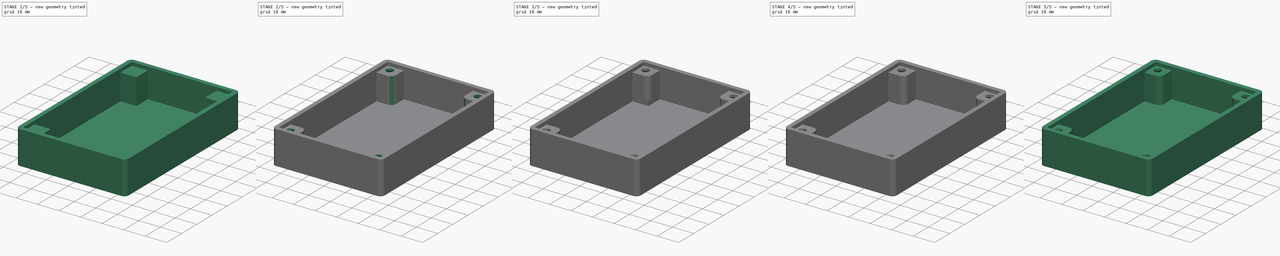
[diagram: build sequence overview — one tinted view per stage of 5, left to right]
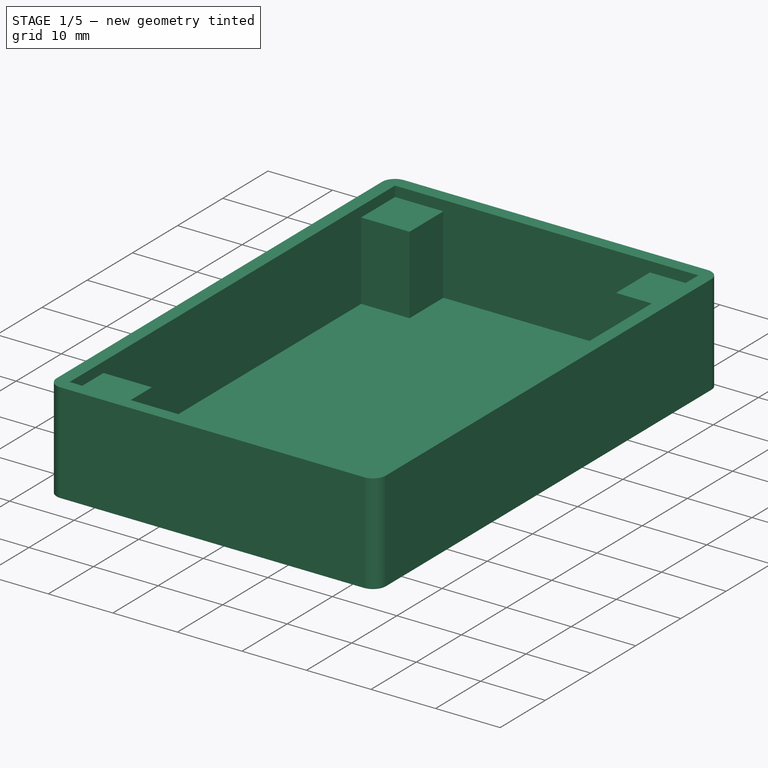
[diagram: stage 1 of 5 — iso view after this stage's code; geometry added in this stage tinted green]
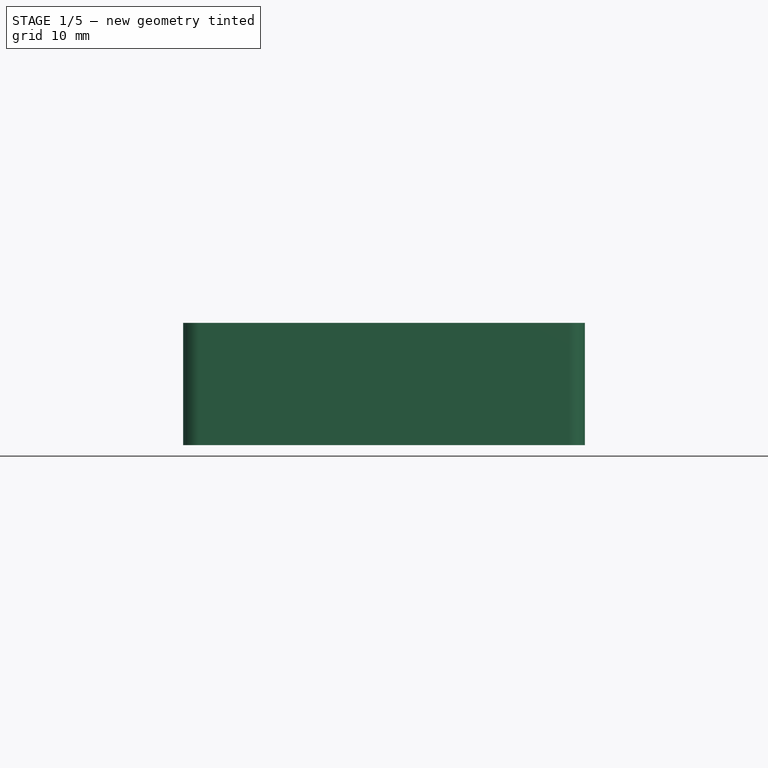
[diagram: stage 1 of 5 — front view after this stage's code; geometry added in this stage tinted green]
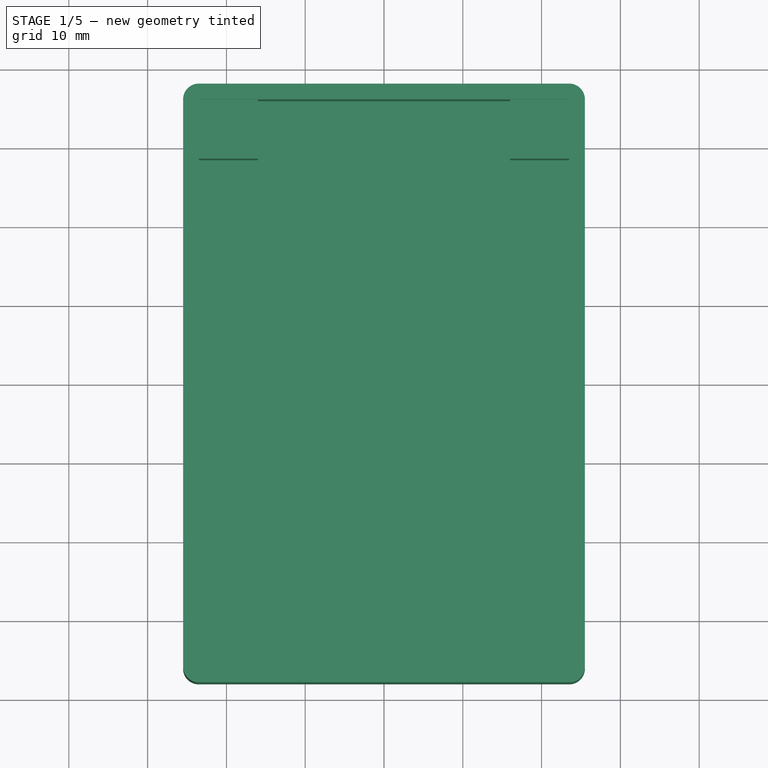
[diagram: stage 1 of 5 — top view after this stage's code; geometry added in this stage tinted green]
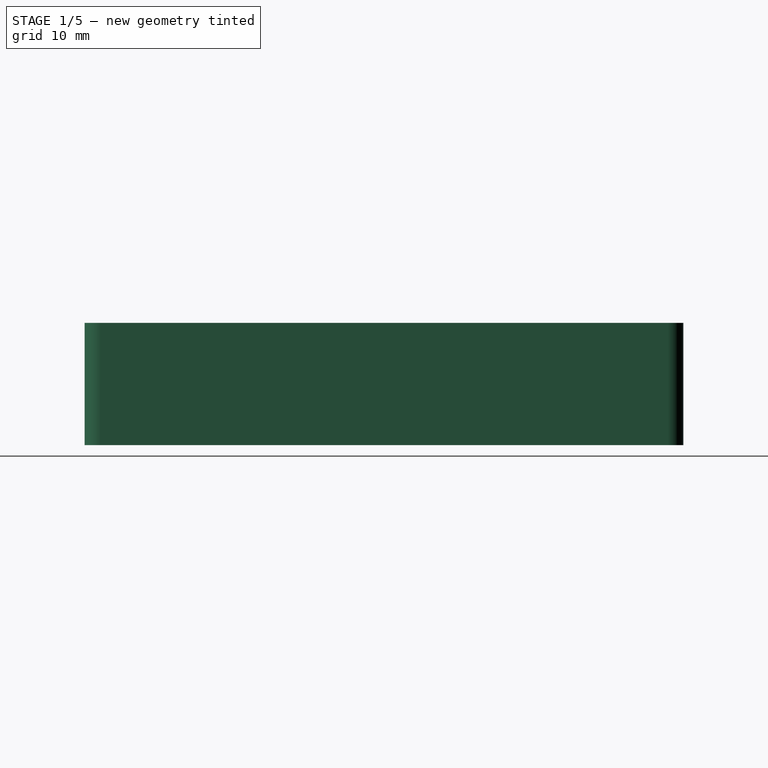
[diagram: stage 1 of 5 — right view after this stage's code; geometry added in this stage tinted green]
FCSTD DOCUMENT  (FreeCAD 1.0R39319 (Git))
Label: SFX-BO-01_Shell
License: All rights reserved
LicenseURL: https://en.wikipedia.org/wiki/All_rights_reserved
objects: Sketcher::SketchObject×14, PartDesign::Pad×8, PartDesign::Hole×4, PartDesign::Fillet×4, PartDesign::Body×4, PartDesign::Pocket×1
note: 83 computed .brp shape members not serialized (recipe doc carries the construction recipe); baked Part::Feature solids carry a one-line shape summary decoded from their .brp

FEATURE [Sketcher::SketchObject] Sketch
  ArcFitTolerance = 1e-06
  AttachmentSupport = -> [XY_Plane]
  FullyConstrained = true
  MakeInternals = false
  MapMode = 5
  sketch-geometry (31):
    g0: LineSegment [constr] StartX=-23.5 StartY=-36 StartZ=0 EndX=23.5 EndY=-36 EndZ=0
    g1: LineSegment [constr] StartX=23.5 StartY=-36 StartZ=0 EndX=23.5 EndY=36 EndZ=0
    g2: LineSegment [constr] StartX=23.5 StartY=36 StartZ=0 EndX=-23.5 EndY=36 EndZ=0
    g3: LineSegment [constr] StartX=-23.5 StartY=36 StartZ=0 EndX=-23.5 EndY=-36 EndZ=0
    g4: GeomPoint [constr] X=0 Y=0 Z=0
    g5: LineSegment [constr] StartX=-23.5 StartY=36 StartZ=0 EndX=-23.5 EndY=33 EndZ=0
    g6: LineSegment [constr] StartX=-23.5 StartY=33 StartZ=0 EndX=-20.5 EndY=33 EndZ=0
    g7: LineSegment [constr] StartX=-20.5 StartY=33 StartZ=0 EndX=-20.5 EndY=36 EndZ=0
    g8: LineSegment [constr] StartX=-20.5 StartY=36 StartZ=0 EndX=-23.5 EndY=36 EndZ=0
    g9: LineSegment [constr] StartX=23.5 StartY=36 StartZ=0 EndX=20.5 EndY=36 EndZ=0
    g10: LineSegment [constr] StartX=20.5 StartY=36 StartZ=0 EndX=20.5 EndY=33 EndZ=0
    g11: LineSegment [constr] StartX=20.5 StartY=33 StartZ=0 EndX=23.5 EndY=33 EndZ=0
    g12: LineSegment [constr] StartX=23.5 StartY=33 StartZ=0 EndX=23.5 EndY=36 EndZ=0
    g13: LineSegment [constr] StartX=23.5 StartY=-36 StartZ=0 EndX=23.5 EndY=-33 EndZ=0
    g14: LineSegment [constr] StartX=23.5 StartY=-33 StartZ=0 EndX=20.5 EndY=-33 EndZ=0
    g15: LineSegment [constr] StartX=20.5 StartY=-33 StartZ=0 EndX=20.5 EndY=-36 EndZ=0
    g16: LineSegment [constr] StartX=20.5 StartY=-36 StartZ=0 EndX=23.5 EndY=-36 EndZ=0
    g17: LineSegment [constr] StartX=-23.5 StartY=-36 StartZ=0 EndX=-20.5 EndY=-36 EndZ=0
    g18: LineSegment [constr] StartX=-20.5 StartY=-36 StartZ=0 EndX=-20.5 EndY=-33 EndZ=0
    g19: LineSegment [constr] StartX=-20.5 StartY=-33 StartZ=0 EndX=-23.5 EndY=-33 EndZ=0
    g20: LineSegment [constr] StartX=-23.5 StartY=-33 StartZ=0 EndX=-23.5 EndY=-36 EndZ=0
    g21: LineSegment StartX=-23.5 StartY=-38 StartZ=0 EndX=23.5 EndY=-38 EndZ=0
    g22: LineSegment StartX=25.5 StartY=-36 StartZ=0 EndX=25.5 EndY=36 EndZ=0
    g23: LineSegment StartX=23.5 StartY=38 StartZ=0 EndX=-23.5 EndY=38 EndZ=0
    g24: LineSegment StartX=-25.5 StartY=36 StartZ=0 EndX=-25.5 EndY=-36 EndZ=0
    g25: ArcOfCircle CenterX=-23.5 CenterY=-36 CenterZ=0 NormalX=0 NormalY=0 NormalZ=1 AngleXU=0 Radius=2 StartAngle=3.14159 EndAngle=4.71239
    g26: ArcOfCircle CenterX=23.5 CenterY=-36 CenterZ=0 NormalX=0 NormalY=0 NormalZ=1 AngleXU=0 Radius=2 StartAngle=4.71239 EndAngle=6.28319
    g27: ArcOfCircle CenterX=23.5 CenterY=36 CenterZ=0 NormalX=0 NormalY=0 NormalZ=1 AngleXU=0 Radius=2 StartAngle=0 EndAngle=1.5708
    g28: ArcOfCircle CenterX=-23.5 CenterY=36 CenterZ=0 NormalX=0 NormalY=0 NormalZ=1 AngleXU=0 Radius=2 StartAngle=1.5708 EndAngle=3.14159
    g29: GeomPoint [constr] X=25.5 Y=38 Z=0
    g30: GeomPoint [constr] X=0 Y=0 Z=0
  constraints (78):
    c: Coincident(g0,g1)
    c: Coincident(g1,g2)
    c: Coincident(g2,g3)
    c: Coincident(g3,g0)
    c: Horizontal(g0)
    c: Horizontal(g2)
    c: Vertical(g1)
    c: Vertical(g3)
    c: Symmetric(g2,g0,g4)
    c: Distance(g1,g3) = 47
    c: Distance(g0,g2) = 72
    c: Coincident(g4,g-1)
    c: Coincident(g5,g6)
    c: Coincident(g6,g7)
    c: Coincident(g7,g8)
    c: Coincident(g8,g5)
    c: Vertical(g5)
    c: Vertical(g7)
    c: Horizontal(g6)
    c: Horizontal(g8)
    c: Distance(g5,g7) = 3
    c: Distance(g6,g8) = 3
    c: Coincident(g5,g2)
    c: Coincident(g9,g10)
    c: Coincident(g10,g11)
    c: Coincident(g11,g12)
    c: Coincident(g12,g9)
    c: Horizontal(g9)
    c: Horizontal(g11)
    c: Vertical(g10)
    c: Vertical(g12)
    c: Distance(g10,g12) = 3
    c: Distance(g9,g11) = 3
    c: Coincident(g9,g1)
    c: Coincident(g13,g14)
    c: Coincident(g14,g15)
    c: Coincident(g15,g16)
    c: Coincident(g16,g13)
    c: Vertical(g13)
    c: Vertical(g15)
    c: Horizontal(g14)
    c: Horizontal(g16)
    c: Distance(g13,g15) = 3
    c: Distance(g14,g16) = 3
    c: Coincident(g13,g0)
    c: Coincident(g17,g18)
    c: Coincident(g18,g19)
    c: Coincident(g19,g20)
    c: Coincident(g20,g17)
    c: Horizontal(g17)
    c: Horizontal(g19)
    c: Vertical(g18)
    c: Vertical(g20)
    c: Distance(g18,g20) = 3
    c: Distance(g17,g19) = 3
    c: Coincident(g17,g0)
    c: Tangent(g21,g25) = -1.5708
    c: Tangent(g21,g26) = -1.5708
    c: Tangent(g22,g26) = -1.5708
    c: Tangent(g22,g27) = -1.5708
    c: Tangent(g23,g27) = -1.5708
    c: Tangent(g23,g28) = -1.5708
    c: Tangent(g24,g28) = -1.5708
    c: Tangent(g24,g25) = -1.5708
    c: Horizontal(g21)
    c: Horizontal(g23)
    c: Vertical(g22)
    c: Vertical(g24)
    c: Equal(g25,g26)
    c: Equal(g26,g27)
    c: Equal(g27,g28)
    c: Symmetric(g23,g21,g30)
    c: PointOnObject(g29,g22)
    c: PointOnObject(g29,g23)
    c: Distance(g22,g24) = 51
    c: Distance(g21,g23) = 76
    c: Radius(g26) = 2
    c: Coincident(g30,g4)
FEATURE [PartDesign::Pad] Pad
  Direction = (0,0,1)
  Length = 1.8
  Length2 = 10
  Profile = -> Sketch
  ReferenceAxis = -> Sketch [N_Axis]
  Suppressed = false
  Type = 0
FEATURE [Sketcher::SketchObject] Sketch001
  ArcFitTolerance = 1e-06
  AttachmentSupport = -> [Pad]
  FullyConstrained = true
  MakeInternals = false
  MapMode = 5
  Placement = pos=(0,0,1.8) rot=(0,0,1;0rad)
  sketch-geometry (15):
    g0: LineSegment StartX=-23.5 StartY=-38 StartZ=0 EndX=23.5 EndY=-38 EndZ=0
    g1: LineSegment StartX=25.5 StartY=-36 StartZ=0 EndX=25.5 EndY=36 EndZ=0
    g2: LineSegment StartX=23.5 StartY=38 StartZ=0 EndX=-23.5 EndY=38 EndZ=0
    g3: LineSegment StartX=-25.5 StartY=36 StartZ=0 EndX=-25.5 EndY=-36 EndZ=0
    g4: ArcOfCircle CenterX=-23.5 CenterY=-36 CenterZ=0 NormalX=0 NormalY=0 NormalZ=1 AngleXU=0 Radius=2 StartAngle=3.14159 EndAngle=4.71239
    g5: ArcOfCircle CenterX=23.5 CenterY=-36 CenterZ=0 NormalX=0 NormalY=0 NormalZ=1 AngleXU=0 Radius=2 StartAngle=4.71239 EndAngle=6.28319
    g6: ArcOfCircle CenterX=23.5 CenterY=36 CenterZ=0 NormalX=0 NormalY=0 NormalZ=1 AngleXU=0 Radius=2 StartAngle=-1.8e-15 EndAngle=1.5708
    g7: ArcOfCircle CenterX=-23.5 CenterY=36 CenterZ=0 NormalX=0 NormalY=0 NormalZ=1 AngleXU=0 Radius=2 StartAngle=1.5708 EndAngle=3.14159
    g8: GeomPoint [constr] X=25.5 Y=38 Z=0
    g9: GeomPoint [constr] X=0 Y=0 Z=0
    g10: LineSegment StartX=-23.5 StartY=-36 StartZ=0 EndX=23.5 EndY=-36 EndZ=0
    g11: LineSegment StartX=23.5 StartY=-36 StartZ=0 EndX=23.5 EndY=36 EndZ=0
    g12: LineSegment StartX=23.5 StartY=36 StartZ=0 EndX=-23.5 EndY=36 EndZ=0
    g13: LineSegment StartX=-23.5 StartY=36 StartZ=0 EndX=-23.5 EndY=-36 EndZ=0
    g14: GeomPoint [constr] X=0 Y=0 Z=0
  constraints (33):
    c: Tangent(g0,g4) = -1.5708
    c: Tangent(g0,g5) = -1.5708
    c: Tangent(g1,g5) = -1.5708
    c: Tangent(g1,g6) = -1.5708
    c: Tangent(g2,g6) = -1.5708
    c: Tangent(g2,g7) = -1.5708
    c: Tangent(g3,g7) = -1.5708
    c: Tangent(g3,g4) = -1.5708
    c: Horizontal(g0)
    c: Horizontal(g2)
    c: Vertical(g1)
    c: Vertical(g3)
    c: Equal(g4,g5)
    c: Equal(g5,g6)
    c: Equal(g6,g7)
    c: Symmetric(g2,g0,g9)
    c: PointOnObject(g8,g1)
    c: PointOnObject(g8,g2)
    c: Distance(g1,g3) = 51
    c: Distance(g0,g2) = 76
    c: Radius(g5) = 2
    c: Coincident(g9,g-1)
    c: Coincident(g10,g11)
    c: Coincident(g11,g12)
    c: Coincident(g12,g13)
    c: Coincident(g13,g10)
    c: Horizontal(g10)
    c: Horizontal(g12)
    c: Vertical(g11)
    c: Vertical(g13)
    c: Symmetric(g12,g10,g14)
    c: Coincident(g14,g9)
    c: Coincident(g11,g6)
FEATURE [PartDesign::Pad] Pad001
  BaseFeature = -> Pad
  Direction = (0,0,1)
  Length = 13.7
  Length2 = 10
  Profile = -> Sketch001
  ReferenceAxis = -> Sketch001 [N_Axis]
  Suppressed = false
  Type = 0
FEATURE [Sketcher::SketchObject] Sketch002
  ArcFitTolerance = 1e-06
  AttachmentSupport = -> [Pad001]
  ExternalGeometry = -> [Pad001]
  FullyConstrained = true
  MakeInternals = false
  MapMode = 5
  Placement = pos=(0,0,1.8) rot=(0,0,1;0rad)
  sketch-geometry (22):
    g0: LineSegment [constr] StartX=-20.5 StartY=-33 StartZ=0 EndX=20.5 EndY=-33 EndZ=0
    g1: LineSegment [constr] StartX=20.5 StartY=-33 StartZ=0 EndX=20.5 EndY=33 EndZ=0
    g2: LineSegment [constr] StartX=20.5 StartY=33 StartZ=0 EndX=-20.5 EndY=33 EndZ=0
    g3: LineSegment [constr] StartX=-20.5 StartY=33 StartZ=0 EndX=-20.5 EndY=-33 EndZ=0
    g4: GeomPoint [constr] X=0 Y=0 Z=0
    g5: GeomPoint [constr] X=0 Y=0 Z=0
    g6: LineSegment StartX=-23.5 StartY=36 StartZ=0 EndX=-23.5 EndY=28.5 EndZ=0
    g7: LineSegment StartX=-23.5 StartY=28.5 StartZ=0 EndX=-16 EndY=28.5 EndZ=0
    g8: LineSegment StartX=-16 StartY=28.5 StartZ=0 EndX=-16 EndY=36 EndZ=0
    g9: LineSegment StartX=-16 StartY=36 StartZ=0 EndX=-23.5 EndY=36 EndZ=0
    g10: LineSegment StartX=23.5 StartY=36 StartZ=0 EndX=16 EndY=36 EndZ=0
    g11: LineSegment StartX=16 StartY=36 StartZ=0 EndX=16 EndY=28.5 EndZ=0
    g12: LineSegment StartX=16 StartY=28.5 StartZ=0 EndX=23.5 EndY=28.5 EndZ=0
    g13: LineSegment StartX=23.5 StartY=28.5 StartZ=0 EndX=23.5 EndY=36 EndZ=0
    g14: LineSegment StartX=23.5 StartY=-36 StartZ=0 EndX=23.5 EndY=-28.5 EndZ=0
    g15: LineSegment StartX=23.5 StartY=-28.5 StartZ=0 EndX=16 EndY=-28.5 EndZ=0
    g16: LineSegment StartX=16 StartY=-28.5 StartZ=0 EndX=16 EndY=-36 EndZ=0
    g17: LineSegment StartX=16 StartY=-36 StartZ=0 EndX=23.5 EndY=-36 EndZ=0
    g18: LineSegment StartX=-23.5 StartY=-36 StartZ=0 EndX=-16 EndY=-36 EndZ=0
    g19: LineSegment StartX=-16 StartY=-36 StartZ=0 EndX=-16 EndY=-28.5 EndZ=0
    g20: LineSegment StartX=-16 StartY=-28.5 StartZ=0 EndX=-23.5 EndY=-28.5 EndZ=0
    g21: LineSegment StartX=-23.5 StartY=-28.5 StartZ=0 EndX=-23.5 EndY=-36 EndZ=0
  constraints (57):
    c: Coincident(g0,g1)
    c: Coincident(g1,g2)
    c: Coincident(g2,g3)
    c: Coincident(g3,g0)
    c: Horizontal(g0)
    c: Horizontal(g2)
    c: Vertical(g1)
    c: Vertical(g3)
    c: Symmetric(g2,g0,g4)
    c: Distance(g1,g3) = 41
    c: Distance(g0,g2) = 66
    c: Coincident(g4,g-1)
    c: Coincident(g5,g4)
    c: Coincident(g6,g7)
    c: Coincident(g7,g8)
    c: Coincident(g8,g9)
    c: Coincident(g9,g6)
    c: Vertical(g6)
    c: Vertical(g8)
    c: Horizontal(g7)
    c: Horizontal(g9)
    c: Distance(g6,g8) = 7.5
    c: Distance(g7,g9) = 7.5
    c: Coincident(g6,g-3)
    c: Coincident(g10,g11)
    c: Coincident(g11,g12)
    c: Coincident(g12,g13)
    c: Coincident(g13,g10)
    c: Horizontal(g10)
    c: Horizontal(g12)
    c: Vertical(g11)
    c: Vertical(g13)
    c: Distance(g11,g13) = 7.5
    c: Distance(g10,g12) = 7.5
    c: Coincident(g10,g-3)
    c: Coincident(g14,g15)
    c: Coincident(g15,g16)
    c: Coincident(g16,g17)
    c: Coincident(g17,g14)
    c: Vertical(g14)
    c: Vertical(g16)
    c: Horizontal(g15)
    c: Horizontal(g17)
    c: Distance(g14,g16) = 7.5
    c: Distance(g15,g17) = 7.5
    c: Coincident(g14,g-4)
    c: Coincident(g18,g19)
    c: Coincident(g19,g20)
    c: Coincident(g20,g21)
    c: Coincident(g21,g18)
    c: Horizontal(g18)
    c: Horizontal(g20)
    c: Vertical(g19)
    c: Vertical(g21)
    c: Distance(g19,g21) = 7.5
    c: Distance(g18,g20) = 7.5
    c: Coincident(g18,g-4)
FEATURE [PartDesign::Pad] Pad002
  BaseFeature = -> Pad001
  Direction = (0,0,1)
  Length = 12.1
  Length2 = 10
  Profile = -> Sketch002
  ReferenceAxis = -> Sketch002 [N_Axis]
  Suppressed = false
  Type = 0
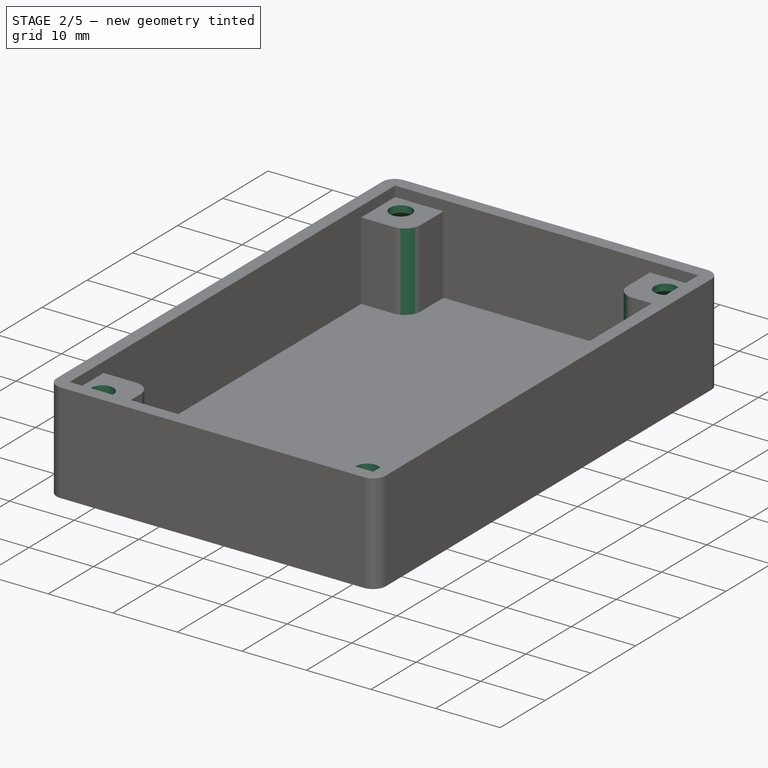
[diagram: stage 2 of 5 — iso view after this stage's code; geometry added in this stage tinted green]
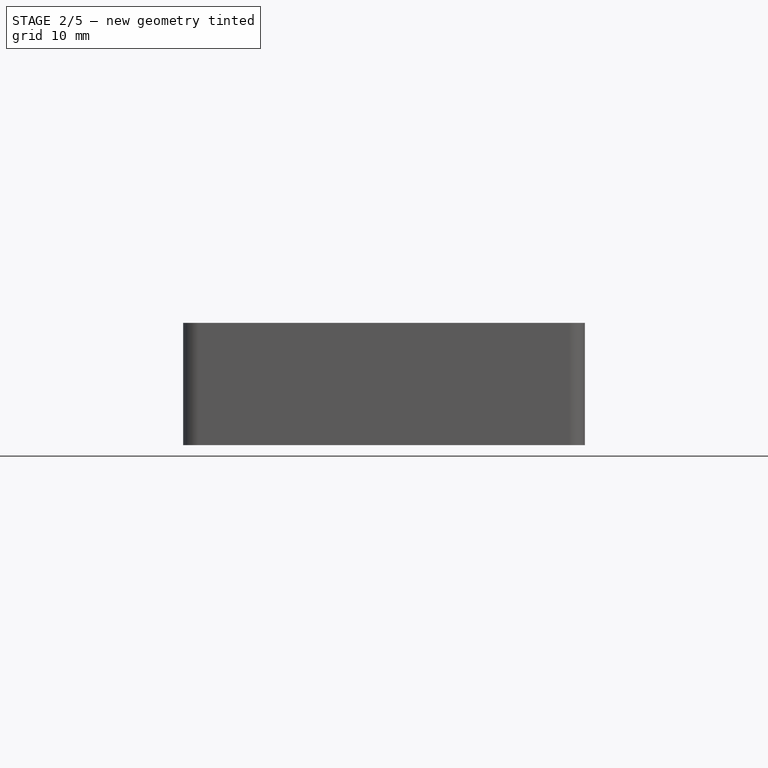
[diagram: stage 2 of 5 — front view after this stage's code; geometry added in this stage tinted green]
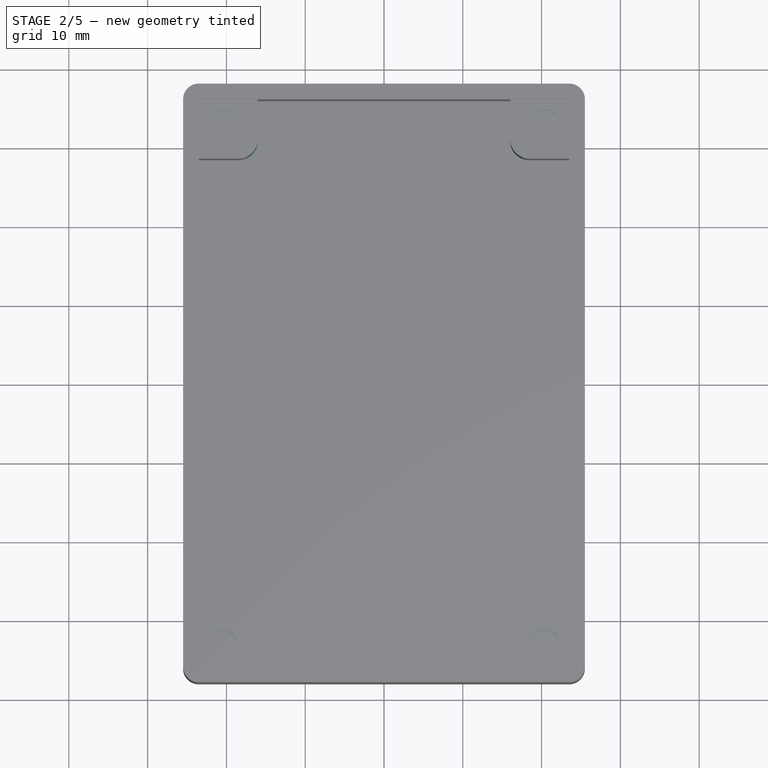
[diagram: stage 2 of 5 — top view after this stage's code; geometry added in this stage tinted green]
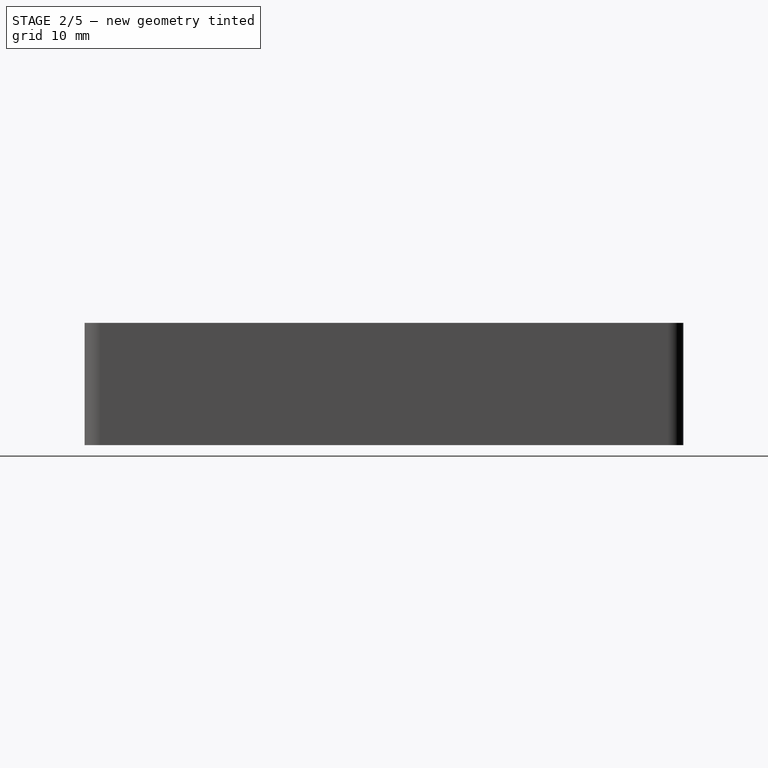
[diagram: stage 2 of 5 — right view after this stage's code; geometry added in this stage tinted green]
FEATURE [Sketcher::SketchObject] Sketch003
  ArcFitTolerance = 1e-06
  FullyConstrained = true
  MakeInternals = false
  MapMode = 5
  Placement = pos=(0,0,0) rot=(1,0,0;3.14159rad)
  sketch-geometry (9):
    g0: LineSegment [constr] StartX=-20.5 StartY=-33 StartZ=0 EndX=20.5 EndY=-33 EndZ=0
    g1: LineSegment [constr] StartX=20.5 StartY=-33 StartZ=0 EndX=20.5 EndY=33 EndZ=0
    g2: LineSegment [constr] StartX=20.5 StartY=33 StartZ=0 EndX=-20.5 EndY=33 EndZ=0
    g3: LineSegment [constr] StartX=-20.5 StartY=33 StartZ=0 EndX=-20.5 EndY=-33 EndZ=0
    g4: GeomPoint [constr] X=0 Y=0 Z=0
    g5: Circle CenterX=-20.5 CenterY=33 CenterZ=0 NormalX=0 NormalY=0 NormalZ=1 AngleXU=0 Radius=1.25
    g6: Circle CenterX=20.5 CenterY=33 CenterZ=0 NormalX=0 NormalY=0 NormalZ=1 AngleXU=0 Radius=1.25
    g7: Circle CenterX=20.5 CenterY=-33 CenterZ=0 NormalX=0 NormalY=0 NormalZ=1 AngleXU=0 Radius=1.25
    g8: Circle CenterX=-20.5 CenterY=-33 CenterZ=0 NormalX=0 NormalY=0 NormalZ=1 AngleXU=0 Radius=1.25
  constraints (20):
    c: Coincident(g0,g1)
    c: Coincident(g1,g2)
    c: Coincident(g2,g3)
    c: Coincident(g3,g0)
    c: Horizontal(g0)
    c: Horizontal(g2)
    c: Vertical(g1)
    c: Vertical(g3)
    c: Symmetric(g2,g0,g4)
    c: Distance(g1,g3) = 41
    c: Distance(g0,g2) = 66
    c: Coincident(g4,g-1)
    c: Diameter(g5) = 2.5
    c: Coincident(g5,g2)
    c: Diameter(g6) = 2.5
    c: Coincident(g6,g1)
    c: Diameter(g7) = 2.5
    c: Coincident(g7,g0)
    c: Diameter(g8) = 2.5
    c: Coincident(g8,g0)
FEATURE [PartDesign::Hole] Hole
  BaseFeature = -> Pad002
  CustomThreadClearance = 0
  Depth = 25
  DepthType = 0
  Diameter = 3.4
  DrillForDepth = false
  DrillPoint = 1
  DrillPointAngle = 118
  HoleCutCountersinkAngle = 90
  HoleCutCustomValues = false
  HoleCutDepth = 11.5
  HoleCutDiameter = 6.1
  HoleCutType = 3
  ModelThread = false
  Profile = -> Sketch003
  Suppressed = false
  Tapered = false
  TaperedAngle = 90
  ThreadClass = 0
  ThreadDepth = 25
  ThreadDepthType = 0
  ThreadDirection = 0
  ThreadFit = 0
  ThreadSize = 9
  ThreadType = 1
  Threaded = false
  UseCustomThreadClearance = false
FEATURE [PartDesign::Fillet] Fillet
  Base = -> Hole [Edge111,Edge114,Edge108,Edge99]
  BaseFeature = -> Hole
  Radius = 2.5
  SupportTransform = false
  Suppressed = false
  UseAllEdges = false
FEATURE [PartDesign::Body] Body002  label="South-Body"
  AllowCompound = false
  Group = -> [Sketch006,Pad004,Sketch007,Hole002,Fillet002]
  Origin = -> Origin002
  Placement = pos=(0,0,0) rot=(0,0,1;3.14159rad)
  Tip = -> Fillet002
FEATURE [Sketcher::SketchObject] Sketch008
  ArcFitTolerance = 1e-06
  AttachmentSupport = -> [XY_Plane003]
  FullyConstrained = true
  MakeInternals = false
  MapMode = 5
  sketch-geometry (31):
    g0: LineSegment [constr] StartX=-23.5 StartY=-36 StartZ=0 EndX=23.5 EndY=-36 EndZ=0
    g1: LineSegment [constr] StartX=23.5 StartY=-36 StartZ=0 EndX=23.5 EndY=36 EndZ=0
    g2: LineSegment [constr] StartX=23.5 StartY=36 StartZ=0 EndX=-23.5 EndY=36 EndZ=0
    g3: LineSegment [constr] StartX=-23.5 StartY=36 StartZ=0 EndX=-23.5 EndY=-36 EndZ=0
    g4: GeomPoint [constr] X=0 Y=0 Z=0
    g5: LineSegment [constr] StartX=-23.5 StartY=36 StartZ=0 EndX=-23.5 EndY=33 EndZ=0
    g6: LineSegment [constr] StartX=-23.5 StartY=33 StartZ=0 EndX=-20.5 EndY=33 EndZ=0
    g7: LineSegment [constr] StartX=-20.5 StartY=33 StartZ=0 EndX=-20.5 EndY=36 EndZ=0
    g8: LineSegment [constr] StartX=-20.5 StartY=36 StartZ=0 EndX=-23.5 EndY=36 EndZ=0
    g9: LineSegment [constr] StartX=23.5 StartY=36 StartZ=0 EndX=20.5 EndY=36 EndZ=0
    g10: LineSegment [constr] StartX=20.5 StartY=36 StartZ=0 EndX=20.5 EndY=33 EndZ=0
    g11: LineSegment [constr] StartX=20.5 StartY=33 StartZ=0 EndX=23.5 EndY=33 EndZ=0
    g12: LineSegment [constr] StartX=23.5 StartY=33 StartZ=0 EndX=23.5 EndY=36 EndZ=0
    g13: LineSegment [constr] StartX=23.5 StartY=-36 StartZ=0 EndX=23.5 EndY=-33 EndZ=0
    g14: LineSegment [constr] StartX=23.5 StartY=-33 StartZ=0 EndX=20.5 EndY=-33 EndZ=0
    g15: LineSegment [constr] StartX=20.5 StartY=-33 StartZ=0 EndX=20.5 EndY=-36 EndZ=0
    g16: LineSegment [constr] StartX=20.5 StartY=-36 StartZ=0 EndX=23.5 EndY=-36 EndZ=0
    g17: LineSegment [constr] StartX=-23.5 StartY=-36 StartZ=0 EndX=-20.5 EndY=-36 EndZ=0
    g18: LineSegment [constr] StartX=-20.5 StartY=-36 StartZ=0 EndX=-20.5 EndY=-33 EndZ=0
    g19: LineSegment [constr] StartX=-20.5 StartY=-33 StartZ=0 EndX=-23.5 EndY=-33 EndZ=0
    g20: LineSegment [constr] StartX=-23.5 StartY=-33 StartZ=0 EndX=-23.5 EndY=-36 EndZ=0
    g21: LineSegment StartX=-23.5 StartY=-38 StartZ=0 EndX=23.5 EndY=-38 EndZ=0
    g22: LineSegment StartX=25.5 StartY=-36 StartZ=0 EndX=25.5 EndY=36 EndZ=0
    g23: LineSegment StartX=23.5 StartY=38 StartZ=0 EndX=-23.5 EndY=38 EndZ=0
    g24: LineSegment StartX=-25.5 StartY=36 StartZ=0 EndX=-25.5 EndY=-36 EndZ=0
    g25: ArcOfCircle CenterX=-23.5 CenterY=-36 CenterZ=0 NormalX=0 NormalY=0 NormalZ=1 AngleXU=0 Radius=2 StartAngle=3.14159 EndAngle=4.71239
    g26: ArcOfCircle CenterX=23.5 CenterY=-36 CenterZ=0 NormalX=0 NormalY=0 NormalZ=1 AngleXU=0 Radius=2 StartAngle=4.71239 EndAngle=6.28319
    g27: ArcOfCircle CenterX=23.5 CenterY=36 CenterZ=0 NormalX=0 NormalY=0 NormalZ=1 AngleXU=0 Radius=2 StartAngle=0 EndAngle=1.5708
    g28: ArcOfCircle CenterX=-23.5 CenterY=36 CenterZ=0 NormalX=0 NormalY=0 NormalZ=1 AngleXU=0 Radius=2 StartAngle=1.5708 EndAngle=3.14159
    g29: GeomPoint [constr] X=25.5 Y=38 Z=0
    g30: GeomPoint [constr] X=0 Y=0 Z=0
  constraints (78):
    c: Coincident(g0,g1)
    c: Coincident(g1,g2)
    c: Coincident(g2,g3)
    c: Coincident(g3,g0)
    c: Horizontal(g0)
    c: Horizontal(g2)
    c: Vertical(g1)
    c: Vertical(g3)
    c: Symmetric(g2,g0,g4)
    c: Distance(g1,g3) = 47
    c: Distance(g0,g2) = 72
    c: Coincident(g4,g-1)
    c: Coincident(g5,g6)
    c: Coincident(g6,g7)
    c: Coincident(g7,g8)
    c: Coincident(g8,g5)
    c: Vertical(g5)
    c: Vertical(g7)
    c: Horizontal(g6)
    c: Horizontal(g8)
    c: Distance(g5,g7) = 3
    c: Distance(g6,g8) = 3
    c: Coincident(g5,g2)
    c: Coincident(g9,g10)
    c: Coincident(g10,g11)
    c: Coincident(g11,g12)
    c: Coincident(g12,g9)
    c: Horizontal(g9)
    c: Horizontal(g11)
    c: Vertical(g10)
    c: Vertical(g12)
    c: Distance(g10,g12) = 3
    c: Distance(g9,g11) = 3
    c: Coincident(g9,g1)
    c: Coincident(g13,g14)
    c: Coincident(g14,g15)
    c: Coincident(g15,g16)
    c: Coincident(g16,g13)
    c: Vertical(g13)
    c: Vertical(g15)
    c: Horizontal(g14)
    c: Horizontal(g16)
    c: Distance(g13,g15) = 3
    c: Distance(g14,g16) = 3
    c: Coincident(g13,g0)
    c: Coincident(g17,g18)
    c: Coincident(g18,g19)
    c: Coincident(g19,g20)
    c: Coincident(g20,g17)
    c: Horizontal(g17)
    c: Horizontal(g19)
    c: Vertical(g18)
    c: Vertical(g20)
    c: Distance(g18,g20) = 3
    c: Distance(g17,g19) = 3
    c: Coincident(g17,g0)
    c: Tangent(g21,g25) = -1.5708
    c: Tangent(g21,g26) = -1.5708
    c: Tangent(g22,g26) = -1.5708
    c: Tangent(g22,g27) = -1.5708
    c: Tangent(g23,g27) = -1.5708
    c: Tangent(g23,g28) = -1.5708
    c: Tangent(g24,g28) = -1.5708
    c: Tangent(g24,g25) = -1.5708
    c: Horizontal(g21)
    c: Horizontal(g23)
    c: Vertical(g22)
    c: Vertical(g24)
    c: Equal(g25,g26)
    c: Equal(g26,g27)
    c: Equal(g27,g28)
    c: Symmetric(g23,g21,g30)
    c: PointOnObject(g29,g22)
    c: PointOnObject(g29,g23)
    c: Distance(g22,g24) = 51
    c: Distance(g21,g23) = 76
    c: Radius(g26) = 2
    c: Coincident(g30,g4)
FEATURE [PartDesign::Pad] Pad005
  Direction = (0,0,1)
  Length = 1.8
  Length2 = 10
  Profile = -> Sketch008
  ReferenceAxis = -> Sketch008 [N_Axis]
  Suppressed = false
  Type = 0
FEATURE [Sketcher::SketchObject] Sketch012  label="Sketch012_Slot_if_needed"
  ArcFitTolerance = 1e-06
  AttachmentSupport = -> [Fillet003]
  FullyConstrained = true
  MakeInternals = false
  MapMode = 5
  Placement = pos=(0,0,1.8) rot=(0,0,1;0rad)
  sketch-geometry (45):
    g0: LineSegment [constr] StartX=-23.5 StartY=-36 StartZ=0 EndX=23.5 EndY=-36 EndZ=0
    g1: LineSegment [constr] StartX=23.5 StartY=-36 StartZ=0 EndX=23.5 EndY=36 EndZ=0
    g2: LineSegment [constr] StartX=23.5 StartY=36 StartZ=0 EndX=-23.5 EndY=36 EndZ=0
    g3: LineSegment [constr] StartX=-23.5 StartY=36 StartZ=0 EndX=-23.5 EndY=-36 EndZ=0
    g4: GeomPoint [constr] X=2.147e-13 Y=-3.952e-13 Z=0
    g5: GeomPoint [constr] X=-23.5 Y=-7.3 Z=0
    g6: GeomPoint [constr] X=-23.5 Y=-17.5 Z=0
    g7: GeomPoint [constr] X=-23.5 Y=6.7 Z=0
    g8: GeomPoint [constr] X=-23.5 Y=16.8 Z=0
    g9: GeomPoint [constr] X=23.5 Y=13.1 Z=0
    g10: GeomPoint [constr] X=23.5 Y=2.94 Z=0
    g11: GeomPoint [constr] X=23.5 Y=-10.6 Z=0
    g12: GeomPoint [constr] X=23.5 Y=-20.7 Z=0
    g13: GeomPoint [constr] X=-23.5 Y=-20 Z=0
    g14: GeomPoint [constr] X=-23.5 Y=-4.8 Z=0
    g15: GeomPoint [constr] X=-23.5 Y=4.2 Z=0
    g16: GeomPoint [constr] X=-23.5 Y=19.3 Z=0
    g17: GeomPoint [constr] X=23.5 Y=15.6 Z=0
    g18: GeomPoint [constr] X=23.5 Y=-8.1 Z=0
    g19: GeomPoint [constr] X=23.5 Y=-23.2 Z=0
    g20: GeomPoint [constr] X=23.5 Y=0.44 Z=0
    g21: LineSegment StartX=-23.5 StartY=-20 StartZ=0 EndX=-23.5 EndY=-20 EndZ=0
    g22: LineSegment StartX=-23.5 StartY=-20 StartZ=0 EndX=-23.5 EndY=-4.8 EndZ=0
    g23: LineSegment StartX=-23.5 StartY=-4.8 StartZ=0 EndX=-23.5 EndY=-4.8 EndZ=0
    g24: LineSegment StartX=-23.5 StartY=-4.8 StartZ=0 EndX=-23.5 EndY=-20 EndZ=0
    g25: LineSegment StartX=-23.5 StartY=-20 StartZ=0 EndX=-23.5 EndY=-20 EndZ=0
    g26: LineSegment StartX=-23.5 StartY=-20 StartZ=0 EndX=-23.5 EndY=-4.8 EndZ=0
    g27: LineSegment StartX=-23.5 StartY=-4.8 StartZ=0 EndX=-23.5 EndY=-4.8 EndZ=0
    g28: LineSegment StartX=-23.5 StartY=-4.8 StartZ=0 EndX=-23.5 EndY=-20 EndZ=0
    g29: LineSegment StartX=-23.5 StartY=-20 StartZ=0 EndX=-13.5 EndY=-20 EndZ=0
    g30: LineSegment StartX=-13.5 StartY=-20 StartZ=0 EndX=-13.5 EndY=-4.8 EndZ=0
    g31: LineSegment StartX=-13.5 StartY=-4.8 StartZ=0 EndX=-23.5 EndY=-4.8 EndZ=0
    g32: LineSegment StartX=-23.5 StartY=-4.8 StartZ=0 EndX=-23.5 EndY=-20 EndZ=0
    g33: LineSegment StartX=-23.5 StartY=4.2 StartZ=0 EndX=-13.5 EndY=4.2 EndZ=0
    g34: LineSegment StartX=-13.5 StartY=4.2 StartZ=0 EndX=-13.5 EndY=19.4 EndZ=0
    g35: LineSegment StartX=-13.5 StartY=19.4 StartZ=0 EndX=-23.5 EndY=19.4 EndZ=0
    g36: LineSegment StartX=-23.5 StartY=19.4 StartZ=0 EndX=-23.5 EndY=4.2 EndZ=0
    g37: LineSegment StartX=23.5 StartY=0.44 StartZ=0 EndX=23.5 EndY=15.64 EndZ=0
    g38: LineSegment StartX=23.5 StartY=15.64 StartZ=0 EndX=13.5 EndY=15.64 EndZ=0
    g39: LineSegment StartX=13.5 StartY=15.64 StartZ=0 EndX=13.5 EndY=0.44 EndZ=0
    g40: LineSegment StartX=13.5 StartY=0.44 StartZ=0 EndX=23.5 EndY=0.44 EndZ=0
    g41: LineSegment StartX=23.5 StartY=-23.2 StartZ=0 EndX=23.5 EndY=-8 EndZ=0
    g42: LineSegment StartX=23.5 StartY=-8 StartZ=0 EndX=13.5 EndY=-8 EndZ=0
    g43: LineSegment StartX=13.5 StartY=-8 StartZ=0 EndX=13.5 EndY=-23.2 EndZ=0
    g44: LineSegment StartX=13.5 StartY=-23.2 StartZ=0 EndX=23.5 EndY=-23.2 EndZ=0
  constraints (108):
    c: Coincident(g0,g1)
    c: Coincident(g1,g2)
    c: Coincident(g2,g3)
    c: Coincident(g3,g0)
    c: Horizontal(g0)
    c: Horizontal(g2)
    c: Vertical(g1)
    c: Vertical(g3)
    c: Symmetric(g2,g0,g4)
    c: Distance(g1,g3) = 47
    c: Distance(g0,g2) = 72
    c: Coincident(g4,g-1)
    c: PointOnObject(g5,g3)
    c: PointOnObject(g6,g3)
    c: DistanceY(g0,g5) = 28.7
    c: DistanceY(g0,g6) = 18.5
    c: PointOnObject(g7,g3)
    c: PointOnObject(g8,g3)
    c: PointOnObject(g9,g1)
    c: PointOnObject(g10,g1)
    c: PointOnObject(g11,g1)
    c: PointOnObject(g12,g1)
    c: DistanceY(g0,g7) = 42.7
    c: DistanceY(g0,g8) = 52.8
    c: DistanceY(g0,g12) = 15.3
    c: DistanceY(g0,g11) = 25.4
    c: DistanceY(g0,g10) = 38.94
    c: DistanceY(g0,g9) = 49.1
    c: PointOnObject(g13,g3)
    c: PointOnObject(g14,g3)
    c: PointOnObject(g15,g3)
    c: PointOnObject(g16,g3)
    c: PointOnObject(g17,g1)
    c: PointOnObject(g18,g1)
    c: PointOnObject(g19,g1)
    c: DistanceY(g13,g6) = 2.5
    c: DistanceY(g5,g14) = 2.5
    c: DistanceY(g15,g7) = 2.5
    c: DistanceY(g8,g16) = 2.5
    c: DistanceY(g9,g17) = 2.5
    c: PointOnObject(g20,g1)
    c: DistanceY(g20,g10) = 2.5
    c: DistanceY(g11,g18) = 2.5
    c: DistanceY(g19,g12) = 2.5
    c: Coincident(g21,g22)
    c: Coincident(g22,g23)
    c: Coincident(g23,g24)
    c: Coincident(g24,g21)
    c: Horizontal(g21)
    c: Horizontal(g23)
    c: Vertical(g22)
    c: Vertical(g24)
    c: Coincident(g21,g13)
    c: Coincident(g22,g14)
    c: Coincident(g25,g26)
    c: Coincident(g26,g27)
    c: Coincident(g27,g28)
    c: Coincident(g28,g25)
    c: Horizontal(g25)
    c: Horizontal(g27)
    c: Vertical(g26)
    c: Vertical(g28)
    c: Coincident(g25,g13)
    c: Coincident(g26,g14)
    c: Coincident(g29,g30)
    c: Coincident(g30,g31)
    c: Coincident(g31,g32)
    c: Coincident(g32,g29)
    c: Horizontal(g29)
    c: Horizontal(g31)
    c: Vertical(g30)
    c: Vertical(g32)
    c: Distance(g30,g32) = 10
    c: Distance(g29,g31) = 15.2
    c: Coincident(g29,g13)
    c: Coincident(g33,g34)
    c: Coincident(g34,g35)
    c: Coincident(g35,g36)
    c: Coincident(g36,g33)
    c: Horizontal(g33)
    c: Horizontal(g35)
    c: Vertical(g34)
    c: Vertical(g36)
    c: Distance(g34,g36) = 10
    c: Distance(g33,g35) = 15.2
    c: Coincident(g33,g15)
    c: Coincident(g37,g38)
    c: Coincident(g38,g39)
    c: Coincident(g39,g40)
    c: Coincident(g40,g37)
    c: Vertical(g37)
    c: Vertical(g39)
    c: Horizontal(g38)
    c: Horizontal(g40)
    c: Distance(g37,g39) = 10
    c: Distance(g38,g40) = 15.2
    c: Coincident(g37,g20)
    c: Coincident(g41,g42)
    c: Coincident(g42,g43)
    c: Coincident(g43,g44)
    c: Coincident(g44,g41)
    c: Vertical(g41)
    c: Vertical(g43)
    c: Horizontal(g42)
    c: Horizontal(g44)
    c: Distance(g41,g43) = 10
    c: Distance(g42,g44) = 15.2
    c: Coincident(g41,g19)
FEATURE [PartDesign::Body] Body003  label="Bottom-TypeB-Body"
  AllowCompound = false
  Group = -> [Sketch008,Pad005,Sketch009,Pad006,Sketch010,Pad007,Sketch011,Hole003,Fillet003,Sketch012]
  Origin = -> Origin003
  Placement = pos=(0,0,-5.94) rot=(0,0,1;0rad)
  Tip = -> Fillet003
FEATURE [Sketcher::SketchObject] Sketch013
  ArcFitTolerance = 1e-06
  AttachmentSupport = -> [Fillet]
  FullyConstrained = true
  MakeInternals = false
  MapMode = 5
  Placement = pos=(0,0,1.8) rot=(0,0,1;0rad)
  sketch-geometry (25):
    g0: LineSegment [constr] StartX=-23.5 StartY=-36 StartZ=0 EndX=23.5 EndY=-36 EndZ=0
    g1: LineSegment [constr] StartX=23.5 StartY=-36 StartZ=0 EndX=23.5 EndY=36 EndZ=0
    g2: LineSegment [constr] StartX=23.5 StartY=36 StartZ=0 EndX=-23.5 EndY=36 EndZ=0
    g3: LineSegment [constr] StartX=-23.5 StartY=36 StartZ=0 EndX=-23.5 EndY=-36 EndZ=0
    g4: GeomPoint [constr] X=0 Y=0 Z=0
    g5: GeomPoint [constr] X=-23.5 Y=-20 Z=0
    g6: GeomPoint [constr] X=-23.5 Y=4.2 Z=0
    g7: GeomPoint [constr] X=23.5 Y=-23.2 Z=0
    g8: GeomPoint [constr] X=23.5 Y=0.44 Z=0
    g9: LineSegment StartX=-23.5 StartY=-20 StartZ=0 EndX=-13.5 EndY=-20 EndZ=0
    g10: LineSegment StartX=-13.5 StartY=-20 StartZ=0 EndX=-13.5 EndY=-4.8 EndZ=0
    g11: LineSegment StartX=-13.5 StartY=-4.8 StartZ=0 EndX=-23.5 EndY=-4.8 EndZ=0
    g12: LineSegment StartX=-23.5 StartY=-4.8 StartZ=0 EndX=-23.5 EndY=-20 EndZ=0
    g13: LineSegment StartX=-23.5 StartY=4.2 StartZ=0 EndX=-13.5 EndY=4.2 EndZ=0
    g14: LineSegment StartX=-13.5 StartY=4.2 StartZ=0 EndX=-13.5 EndY=19.4 EndZ=0
    g15: LineSegment StartX=-13.5 StartY=19.4 StartZ=0 EndX=-23.5 EndY=19.4 EndZ=0
    g16: LineSegment StartX=-23.5 StartY=19.4 StartZ=0 EndX=-23.5 EndY=4.2 EndZ=0
    g17: LineSegment StartX=23.5 StartY=0.44 StartZ=0 EndX=23.5 EndY=15.64 EndZ=0
    g18: LineSegment StartX=23.5 StartY=15.64 StartZ=0 EndX=13.5 EndY=15.64 EndZ=0
    g19: LineSegment StartX=13.5 StartY=15.64 StartZ=0 EndX=13.5 EndY=0.44 EndZ=0
    g20: LineSegment StartX=13.5 StartY=0.44 StartZ=0 EndX=23.5 EndY=0.44 EndZ=0
    g21: LineSegment StartX=23.5 StartY=-23.2 StartZ=0 EndX=23.5 EndY=-8 EndZ=0
    g22: LineSegment StartX=23.5 StartY=-8 StartZ=0 EndX=13.5 EndY=-8 EndZ=0
    g23: LineSegment StartX=13.5 StartY=-8 StartZ=0 EndX=13.5 EndY=-23.2 EndZ=0
    g24: LineSegment StartX=13.5 StartY=-23.2 StartZ=0 EndX=23.5 EndY=-23.2 EndZ=0
  constraints (64):
    c: Coincident(g0,g1)
    c: Coincident(g1,g2)
    c: Coincident(g2,g3)
    c: Coincident(g3,g0)
    c: Horizontal(g0)
    c: Horizontal(g2)
    c: Vertical(g1)
    c: Vertical(g3)
    c: Symmetric(g2,g0,g4)
    c: Distance(g1,g3) = 47
    c: Distance(g0,g2) = 72
    c: Coincident(g4,g-1)
    c: PointOnObject(g5,g3)
    c: PointOnObject(g6,g3)
    c: PointOnObject(g7,g1)
    c: PointOnObject(g8,g1)
    c: DistanceY(g0,g5) = 16
    c: DistanceY(g0,g6) = 40.2
    c: DistanceY(g0,g7) = 12.8
    c: DistanceY(g0,g8) = 36.44
    c: Coincident(g9,g10)
    c: Coincident(g10,g11)
    c: Coincident(g11,g12)
    c: Coincident(g12,g9)
    c: Horizontal(g9)
    c: Horizontal(g11)
    c: Vertical(g10)
    c: Vertical(g12)
    c: Distance(g10,g12) = 10
    c: Distance(g9,g11) = 15.2
    c: Coincident(g9,g5)
    c: Coincident(g13,g14)
    c: Coincident(g14,g15)
    c: Coincident(g15,g16)
    c: Coincident(g16,g13)
    c: Horizontal(g13)
    c: Horizontal(g15)
    c: Vertical(g14)
    c: Vertical(g16)
    c: Distance(g14,g16) = 10
    c: Distance(g13,g15) = 15.2
    c: Coincident(g13,g6)
    c: Coincident(g17,g18)
    c: Coincident(g18,g19)
    c: Coincident(g19,g20)
    c: Coincident(g20,g17)
    c: Vertical(g17)
    c: Vertical(g19)
    c: Horizontal(g18)
    c: Horizontal(g20)
    c: Distance(g17,g19) = 10
    c: Distance(g18,g20) = 15.2
    c: Coincident(g17,g8)
    c: Coincident(g21,g22)
    c: Coincident(g22,g23)
    c: Coincident(g23,g24)
    c: Coincident(g24,g21)
    c: Vertical(g21)
    c: Vertical(g23)
    c: Horizontal(g22)
    c: Horizontal(g24)
    c: Distance(g21,g23) = 10
    c: Distance(g22,g24) = 15.2
    c: Coincident(g21,g7)
FEATURE [PartDesign::Pocket] Pocket001
  BaseFeature = -> Fillet
  Direction = (0,0,-1)
  Length = 1.8
  Length2 = 5
  Profile = -> Sketch013
  ReferenceAxis = -> Sketch013 [N_Axis]
  Suppressed = false
  Type = 0
FEATURE [PartDesign::Body] Body  label="Bottom-TypeA-Body"
  AllowCompound = false
  Group = -> [Sketch,Pad,Sketch001,Pad001,Sketch002,Pad002,Sketch003,Hole,Fillet,Sketch013,Pocket001]
  Origin = -> Origin
  Placement = pos=(0,0,-15.5) rot=(0,0,1;0rad)
  Tip = -> Pocket001
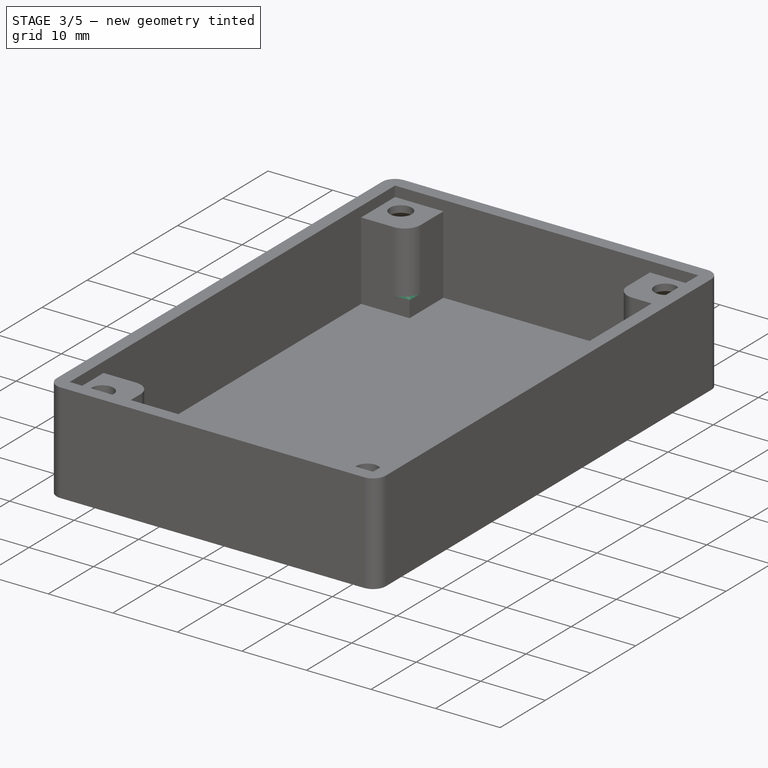
[diagram: stage 3 of 5 — iso view after this stage's code; geometry added in this stage tinted green]
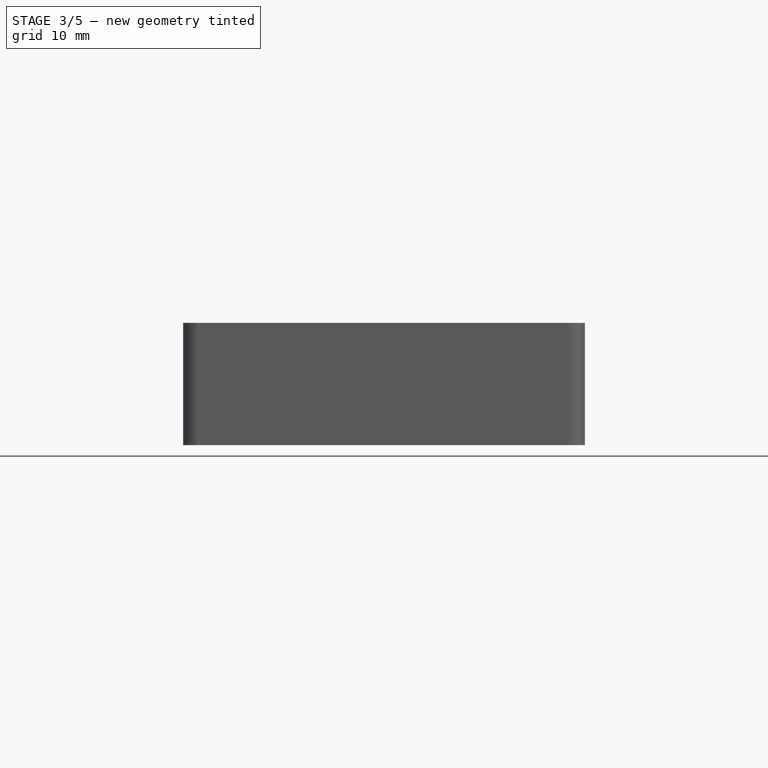
[diagram: stage 3 of 5 — front view after this stage's code; geometry added in this stage tinted green]
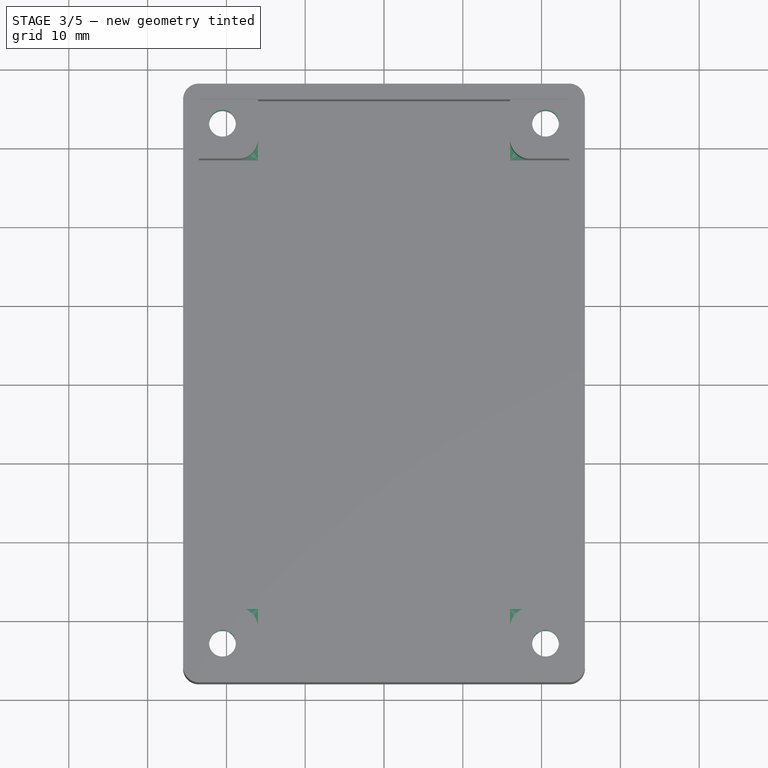
[diagram: stage 3 of 5 — top view after this stage's code; geometry added in this stage tinted green]
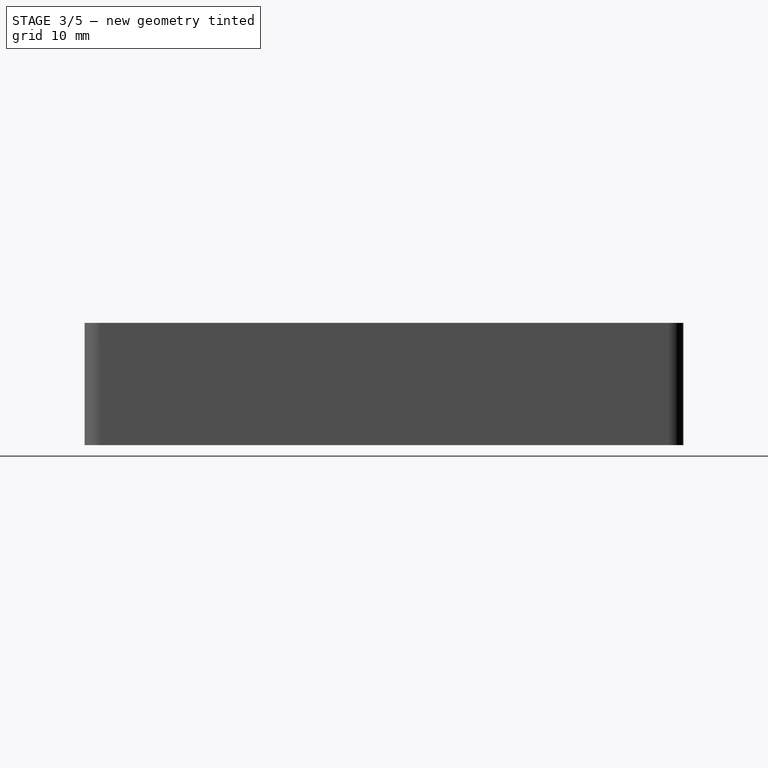
[diagram: stage 3 of 5 — right view after this stage's code; geometry added in this stage tinted green]
FEATURE [Sketcher::SketchObject] Sketch009
  ArcFitTolerance = 1e-06
  AttachmentSupport = -> [Pad005]
  FullyConstrained = true
  MakeInternals = false
  MapMode = 5
  Placement = pos=(0,0,1.8) rot=(0,0,1;0rad)
  sketch-geometry (15):
    g0: LineSegment StartX=-23.5 StartY=-38 StartZ=0 EndX=23.5 EndY=-38 EndZ=0
    g1: LineSegment StartX=25.5 StartY=-36 StartZ=0 EndX=25.5 EndY=36 EndZ=0
    g2: LineSegment StartX=23.5 StartY=38 StartZ=0 EndX=-23.5 EndY=38 EndZ=0
    g3: LineSegment StartX=-25.5 StartY=36 StartZ=0 EndX=-25.5 EndY=-36 EndZ=0
    g4: ArcOfCircle CenterX=-23.5 CenterY=-36 CenterZ=0 NormalX=0 NormalY=0 NormalZ=1 AngleXU=0 Radius=2 StartAngle=3.14159 EndAngle=4.71239
    g5: ArcOfCircle CenterX=23.5 CenterY=-36 CenterZ=0 NormalX=0 NormalY=0 NormalZ=1 AngleXU=0 Radius=2 StartAngle=4.71239 EndAngle=6.28319
    g6: ArcOfCircle CenterX=23.5 CenterY=36 CenterZ=0 NormalX=0 NormalY=0 NormalZ=1 AngleXU=0 Radius=2 StartAngle=-1.8e-15 EndAngle=1.5708
    g7: ArcOfCircle CenterX=-23.5 CenterY=36 CenterZ=0 NormalX=0 NormalY=0 NormalZ=1 AngleXU=0 Radius=2 StartAngle=1.5708 EndAngle=3.14159
    g8: GeomPoint [constr] X=25.5 Y=38 Z=0
    g9: GeomPoint [constr] X=0 Y=0 Z=0
    g10: LineSegment StartX=-23.5 StartY=-36 StartZ=0 EndX=23.5 EndY=-36 EndZ=0
    g11: LineSegment StartX=23.5 StartY=-36 StartZ=0 EndX=23.5 EndY=36 EndZ=0
    g12: LineSegment StartX=23.5 StartY=36 StartZ=0 EndX=-23.5 EndY=36 EndZ=0
    g13: LineSegment StartX=-23.5 StartY=36 StartZ=0 EndX=-23.5 EndY=-36 EndZ=0
    g14: GeomPoint [constr] X=0 Y=0 Z=0
  constraints (33):
    c: Tangent(g0,g4) = -1.5708
    c: Tangent(g0,g5) = -1.5708
    c: Tangent(g1,g5) = -1.5708
    c: Tangent(g1,g6) = -1.5708
    c: Tangent(g2,g6) = -1.5708
    c: Tangent(g2,g7) = -1.5708
    c: Tangent(g3,g7) = -1.5708
    c: Tangent(g3,g4) = -1.5708
    c: Horizontal(g0)
    c: Horizontal(g2)
    c: Vertical(g1)
    c: Vertical(g3)
    c: Equal(g4,g5)
    c: Equal(g5,g6)
    c: Equal(g6,g7)
    c: Symmetric(g2,g0,g9)
    c: PointOnObject(g8,g1)
    c: PointOnObject(g8,g2)
    c: Distance(g1,g3) = 51
    c: Distance(g0,g2) = 76
    c: Radius(g5) = 2
    c: Coincident(g9,g-1)
    c: Coincident(g10,g11)
    c: Coincident(g11,g12)
    c: Coincident(g12,g13)
    c: Coincident(g13,g10)
    c: Horizontal(g10)
    c: Horizontal(g12)
    c: Vertical(g11)
    c: Vertical(g13)
    c: Symmetric(g12,g10,g14)
    c: Coincident(g14,g9)
    c: Coincident(g11,g6)
FEATURE [PartDesign::Pad] Pad006
  BaseFeature = -> Pad005
  Direction = (0,0,1)
  Length = 4.14
  Length2 = 10
  Profile = -> Sketch009
  ReferenceAxis = -> Sketch009 [N_Axis]
  Suppressed = false
  Type = 0
FEATURE [Sketcher::SketchObject] Sketch010
  ArcFitTolerance = 1e-06
  AttachmentSupport = -> [Pad006]
  ExternalGeometry = -> [Pad006]
  FullyConstrained = true
  MakeInternals = false
  MapMode = 5
  Placement = pos=(0,0,1.8) rot=(0,0,1;0rad)
  sketch-geometry (22):
    g0: LineSegment [constr] StartX=-20.5 StartY=-33 StartZ=0 EndX=20.5 EndY=-33 EndZ=0
    g1: LineSegment [constr] StartX=20.5 StartY=-33 StartZ=0 EndX=20.5 EndY=33 EndZ=0
    g2: LineSegment [constr] StartX=20.5 StartY=33 StartZ=0 EndX=-20.5 EndY=33 EndZ=0
    g3: LineSegment [constr] StartX=-20.5 StartY=33 StartZ=0 EndX=-20.5 EndY=-33 EndZ=0
    g4: GeomPoint [constr] X=0 Y=0 Z=0
    g5: GeomPoint [constr] X=0 Y=0 Z=0
    g6: LineSegment StartX=-23.5 StartY=36 StartZ=0 EndX=-23.5 EndY=28.5 EndZ=0
    g7: LineSegment StartX=-23.5 StartY=28.5 StartZ=0 EndX=-16 EndY=28.5 EndZ=0
    g8: LineSegment StartX=-16 StartY=28.5 StartZ=0 EndX=-16 EndY=36 EndZ=0
    g9: LineSegment StartX=-16 StartY=36 StartZ=0 EndX=-23.5 EndY=36 EndZ=0
    g10: LineSegment StartX=23.5 StartY=36 StartZ=0 EndX=16 EndY=36 EndZ=0
    g11: LineSegment StartX=16 StartY=36 StartZ=0 EndX=16 EndY=28.5 EndZ=0
    g12: LineSegment StartX=16 StartY=28.5 StartZ=0 EndX=23.5 EndY=28.5 EndZ=0
    g13: LineSegment StartX=23.5 StartY=28.5 StartZ=0 EndX=23.5 EndY=36 EndZ=0
    g14: LineSegment StartX=23.5 StartY=-36 StartZ=0 EndX=23.5 EndY=-28.5 EndZ=0
    g15: LineSegment StartX=23.5 StartY=-28.5 StartZ=0 EndX=16 EndY=-28.5 EndZ=0
    g16: LineSegment StartX=16 StartY=-28.5 StartZ=0 EndX=16 EndY=-36 EndZ=0
    g17: LineSegment StartX=16 StartY=-36 StartZ=0 EndX=23.5 EndY=-36 EndZ=0
    g18: LineSegment StartX=-23.5 StartY=-36 StartZ=0 EndX=-16 EndY=-36 EndZ=0
    g19: LineSegment StartX=-16 StartY=-36 StartZ=0 EndX=-16 EndY=-28.5 EndZ=0
    g20: LineSegment StartX=-16 StartY=-28.5 StartZ=0 EndX=-23.5 EndY=-28.5 EndZ=0
    g21: LineSegment StartX=-23.5 StartY=-28.5 StartZ=0 EndX=-23.5 EndY=-36 EndZ=0
  constraints (57):
    c: Coincident(g0,g1)
    c: Coincident(g1,g2)
    c: Coincident(g2,g3)
    c: Coincident(g3,g0)
    c: Horizontal(g0)
    c: Horizontal(g2)
    c: Vertical(g1)
    c: Vertical(g3)
    c: Symmetric(g2,g0,g4)
    c: Distance(g1,g3) = 41
    c: Distance(g0,g2) = 66
    c: Coincident(g4,g-1)
    c: Coincident(g5,g4)
    c: Coincident(g6,g7)
    c: Coincident(g7,g8)
    c: Coincident(g8,g9)
    c: Coincident(g9,g6)
    c: Vertical(g6)
    c: Vertical(g8)
    c: Horizontal(g7)
    c: Horizontal(g9)
    c: Distance(g6,g8) = 7.5
    c: Distance(g7,g9) = 7.5
    c: Coincident(g6,g-3)
    c: Coincident(g10,g11)
    c: Coincident(g11,g12)
    c: Coincident(g12,g13)
    c: Coincident(g13,g10)
    c: Horizontal(g10)
    c: Horizontal(g12)
    c: Vertical(g11)
    c: Vertical(g13)
    c: Distance(g11,g13) = 7.5
    c: Distance(g10,g12) = 7.5
    c: Coincident(g10,g-3)
    c: Coincident(g14,g15)
    c: Coincident(g15,g16)
    c: Coincident(g16,g17)
    c: Coincident(g17,g14)
    c: Vertical(g14)
    c: Vertical(g16)
    c: Horizontal(g15)
    c: Horizontal(g17)
    c: Distance(g14,g16) = 7.5
    c: Distance(g15,g17) = 7.5
    c: Coincident(g14,g-4)
    c: Coincident(g18,g19)
    c: Coincident(g19,g20)
    c: Coincident(g20,g21)
    c: Coincident(g21,g18)
    c: Horizontal(g18)
    c: Horizontal(g20)
    c: Vertical(g19)
    c: Vertical(g21)
    c: Distance(g19,g21) = 7.5
    c: Distance(g18,g20) = 7.5
    c: Coincident(g18,g-4)
FEATURE [PartDesign::Pad] Pad007
  BaseFeature = -> Pad006
  Direction = (0,0,1)
  Length = 2.54
  Length2 = 10
  Profile = -> Sketch010
  ReferenceAxis = -> Sketch010 [N_Axis]
  Suppressed = false
  Type = 0
FEATURE [Sketcher::SketchObject] Sketch011
  ArcFitTolerance = 1e-06
  FullyConstrained = true
  MakeInternals = false
  MapMode = 5
  Placement = pos=(0,0,0) rot=(1,0,0;3.14159rad)
  sketch-geometry (9):
    g0: LineSegment [constr] StartX=-20.5 StartY=-33 StartZ=0 EndX=20.5 EndY=-33 EndZ=0
    g1: LineSegment [constr] StartX=20.5 StartY=-33 StartZ=0 EndX=20.5 EndY=33 EndZ=0
    g2: LineSegment [constr] StartX=20.5 StartY=33 StartZ=0 EndX=-20.5 EndY=33 EndZ=0
    g3: LineSegment [constr] StartX=-20.5 StartY=33 StartZ=0 EndX=-20.5 EndY=-33 EndZ=0
    g4: GeomPoint [constr] X=0 Y=0 Z=0
    g5: Circle CenterX=-20.5 CenterY=33 CenterZ=0 NormalX=0 NormalY=0 NormalZ=1 AngleXU=0 Radius=1.25
    g6: Circle CenterX=20.5 CenterY=33 CenterZ=0 NormalX=0 NormalY=0 NormalZ=1 AngleXU=0 Radius=1.25
    g7: Circle CenterX=20.5 CenterY=-33 CenterZ=0 NormalX=0 NormalY=0 NormalZ=1 AngleXU=0 Radius=1.25
    g8: Circle CenterX=-20.5 CenterY=-33 CenterZ=0 NormalX=0 NormalY=0 NormalZ=1 AngleXU=0 Radius=1.25
  constraints (20):
    c: Coincident(g0,g1)
    c: Coincident(g1,g2)
    c: Coincident(g2,g3)
    c: Coincident(g3,g0)
    c: Horizontal(g0)
    c: Horizontal(g2)
    c: Vertical(g1)
    c: Vertical(g3)
    c: Symmetric(g2,g0,g4)
    c: Distance(g1,g3) = 41
    c: Distance(g0,g2) = 66
    c: Coincident(g4,g-1)
    c: Diameter(g5) = 2.5
    c: Coincident(g5,g2)
    c: Diameter(g6) = 2.5
    c: Coincident(g6,g1)
    c: Diameter(g7) = 2.5
    c: Coincident(g7,g0)
    c: Diameter(g8) = 2.5
    c: Coincident(g8,g0)
FEATURE [PartDesign::Hole] Hole003
  BaseFeature = -> Pad007
  CustomThreadClearance = 0
  Depth = 25
  DepthType = 0
  Diameter = 3.4
  DrillForDepth = false
  DrillPoint = 1
  DrillPointAngle = 118
  HoleCutCountersinkAngle = 90
  HoleCutCustomValues = false
  HoleCutDepth = 2.5
  HoleCutDiameter = 6.1
  HoleCutType = 3
  ModelThread = false
  Profile = -> Sketch011
  Suppressed = false
  Tapered = false
  TaperedAngle = 90
  ThreadClass = 0
  ThreadDepth = 25
  ThreadDepthType = 0
  ThreadDirection = 0
  ThreadFit = 0
  ThreadSize = 9
  ThreadType = 1
  Threaded = false
  UseCustomThreadClearance = false
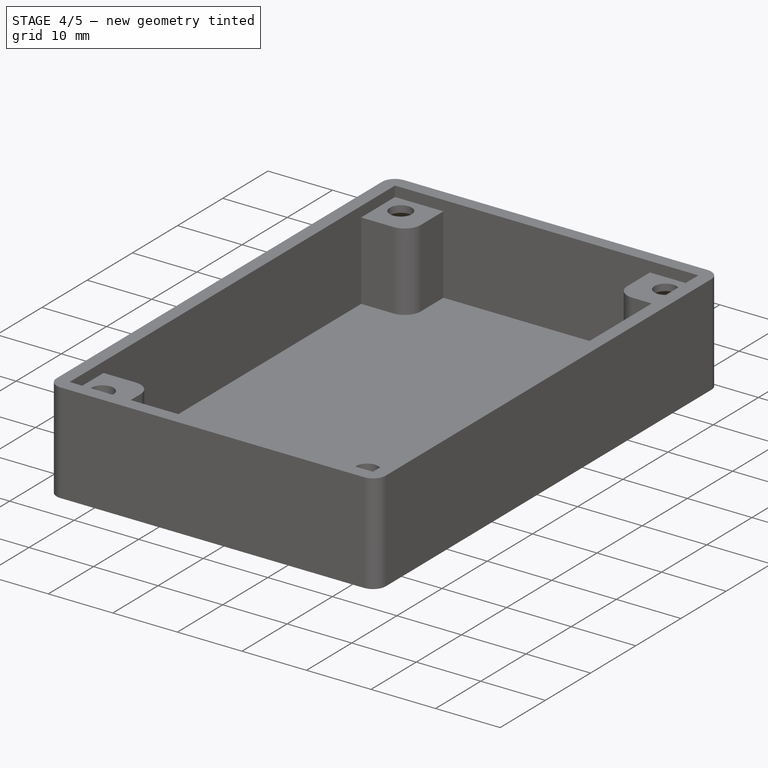
[diagram: stage 4 of 5 — iso view after this stage's code; geometry added in this stage tinted green]
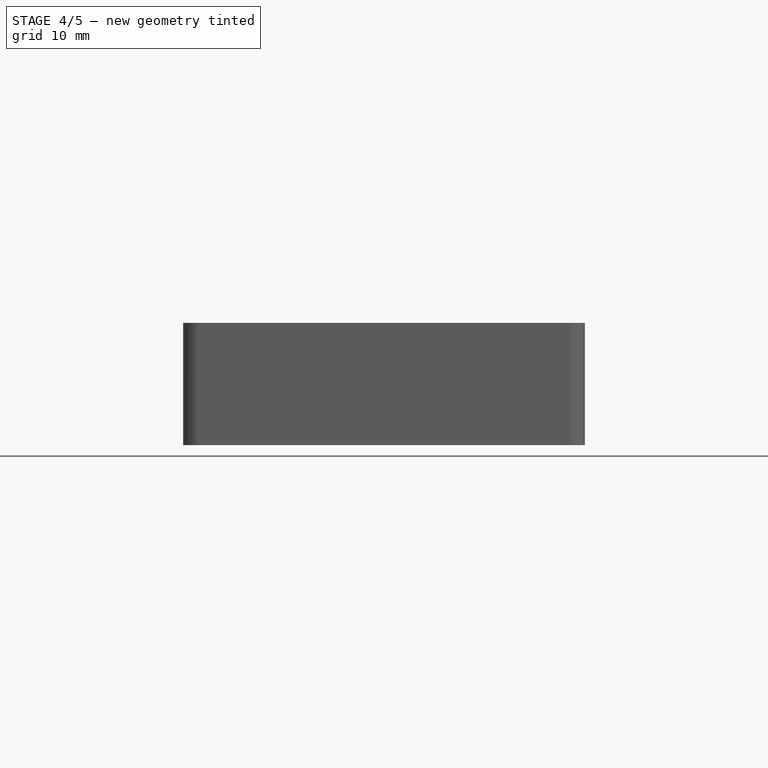
[diagram: stage 4 of 5 — front view after this stage's code; geometry added in this stage tinted green]
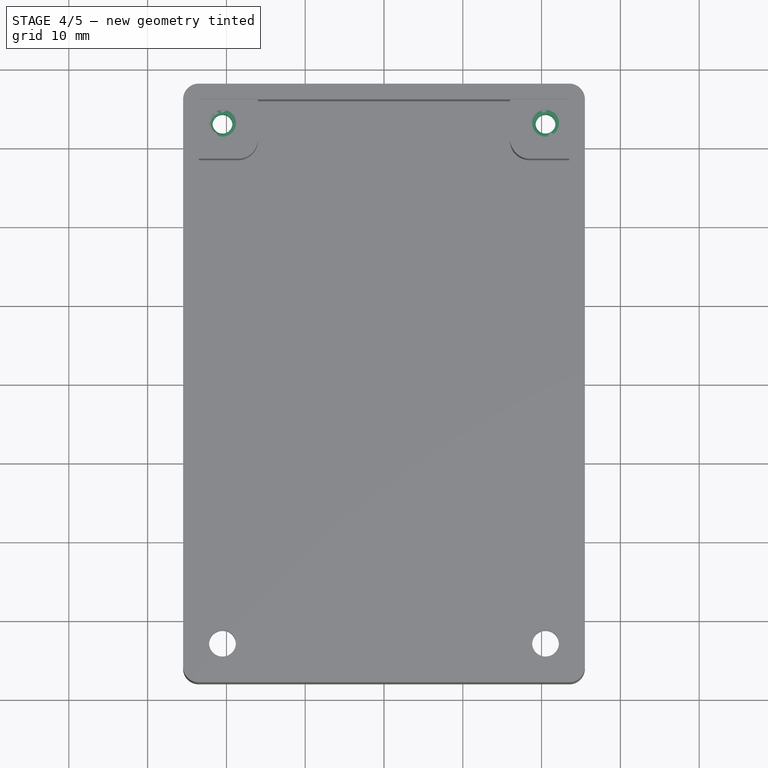
[diagram: stage 4 of 5 — top view after this stage's code; geometry added in this stage tinted green]
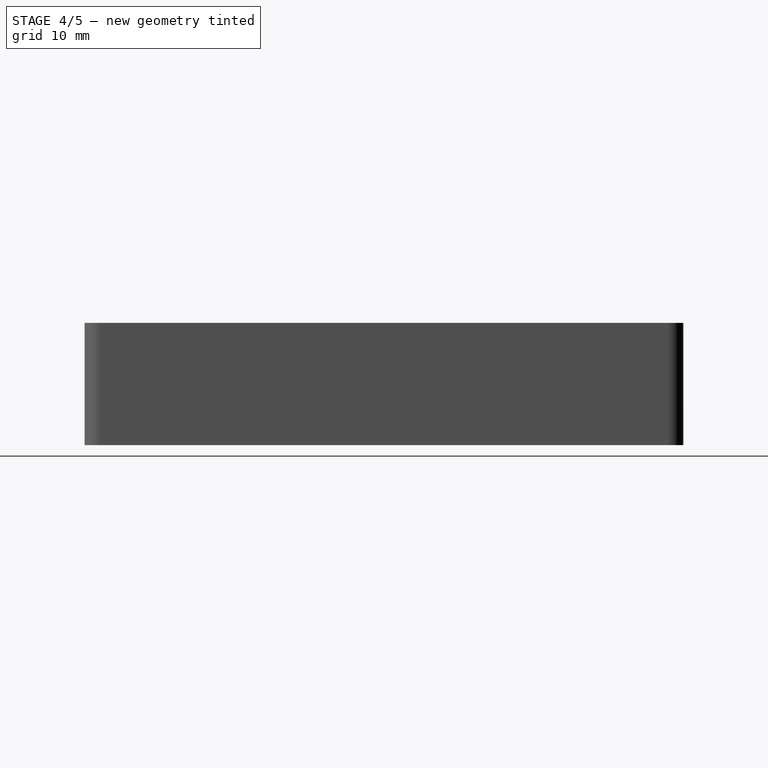
[diagram: stage 4 of 5 — right view after this stage's code; geometry added in this stage tinted green]
FEATURE [PartDesign::Body] Body001  label="North-Body"
  AllowCompound = false
  Group = -> [Sketch004,Pad003,Sketch005,Hole001,Fillet001]
  Origin = -> Origin001
  Tip = -> Fillet001
FEATURE [Sketcher::SketchObject] Sketch006
  ArcFitTolerance = 1e-06
  AttachmentSupport = -> [XY_Plane002]
  FullyConstrained = false
  MakeInternals = false
  MapMode = 5
  sketch-geometry (37):
    g0: LineSegment [constr] StartX=-20.5 StartY=-33 StartZ=0 EndX=20.5 EndY=-33 EndZ=0
    g1: LineSegment [constr] StartX=20.5 StartY=-33 StartZ=0 EndX=20.5 EndY=33 EndZ=0
    g2: LineSegment [constr] StartX=20.5 StartY=33 StartZ=0 EndX=-20.5 EndY=33 EndZ=0
    g3: LineSegment [constr] StartX=-20.5 StartY=33 StartZ=0 EndX=-20.5 EndY=-33 EndZ=0
    g4: GeomPoint [constr] X=0 Y=0 Z=0
    g5: LineSegment [constr] StartX=-23.6 StartY=29.9 StartZ=0 EndX=-17.4 EndY=29.9 EndZ=0
    g6: LineSegment [constr] StartX=-17.4 StartY=29.9 StartZ=0 EndX=-17.4 EndY=36.1 EndZ=0
    g7: LineSegment [constr] StartX=-17.4 StartY=36.1 StartZ=0 EndX=-23.6 EndY=36.1 EndZ=0
    g8: LineSegment [constr] StartX=-23.6 StartY=36.1 StartZ=0 EndX=-23.6 EndY=29.9 EndZ=0
    g9: GeomPoint [constr] X=-20.5 Y=33 Z=0
    g10: LineSegment [constr] StartX=17.4 StartY=29.9 StartZ=0 EndX=23.6 EndY=29.9 EndZ=0
    g11: LineSegment [constr] StartX=23.6 StartY=29.9 StartZ=0 EndX=23.6 EndY=36.1 EndZ=0
    g12: LineSegment [constr] StartX=23.6 StartY=36.1 StartZ=0 EndX=17.4 EndY=36.1 EndZ=0
    g13: LineSegment [constr] StartX=17.4 StartY=36.1 StartZ=0 EndX=17.4 EndY=29.9 EndZ=0
    g14: GeomPoint [constr] X=20.5 Y=33 Z=0
    g15: LineSegment [constr] StartX=-23.5 StartY=-38 StartZ=0 EndX=23.5 EndY=-38 EndZ=0
    g16: LineSegment [constr] StartX=25.5 StartY=-36 StartZ=0 EndX=25.5 EndY=36 EndZ=0
    g17: LineSegment [constr] StartX=23.5 StartY=38 StartZ=0 EndX=-23.5 EndY=38 EndZ=0
    g18: LineSegment [constr] StartX=-25.5 StartY=36 StartZ=0 EndX=-25.5 EndY=-36 EndZ=0
    g19: ArcOfCircle [constr] CenterX=-23.5 CenterY=-36 CenterZ=0 NormalX=0 NormalY=0 NormalZ=1 AngleXU=0 Radius=2 StartAngle=3.14159 EndAngle=4.71239
    g20: ArcOfCircle [constr] CenterX=23.5 CenterY=-36 CenterZ=0 NormalX=0 NormalY=0 NormalZ=1 AngleXU=0 Radius=2 StartAngle=4.71239 EndAngle=6.28319
    g21: ArcOfCircle [constr] CenterX=23.5 CenterY=36 CenterZ=0 NormalX=0 NormalY=0 NormalZ=1 AngleXU=0 Radius=2 StartAngle=0 EndAngle=1.5708
    g22: ArcOfCircle [constr] CenterX=-23.5 CenterY=36 CenterZ=0 NormalX=0 NormalY=0 NormalZ=1 AngleXU=0 Radius=2 StartAngle=1.5708 EndAngle=3.14159
    g23: GeomPoint [constr] X=25.5 Y=38 Z=0
    g24: GeomPoint [constr] X=0 Y=0 Z=0
    g25: LineSegment [constr] StartX=-23.6 StartY=29.9 StartZ=0 EndX=-25.5 EndY=29.9 EndZ=0
    g26: LineSegment [constr] StartX=23.6 StartY=29.9 StartZ=0 EndX=25.5 EndY=29.9 EndZ=0
    g27: LineSegment StartX=-17.4 StartY=29.9 StartZ=0 EndX=-25.5 EndY=29.9 EndZ=0
    g28: LineSegment StartX=-25.5 StartY=29.9 StartZ=0 EndX=-25.5 EndY=36 EndZ=0
    g29: ArcOfCircle CenterX=-23.5 CenterY=36 CenterZ=0 NormalX=0 NormalY=0 NormalZ=1 AngleXU=0 Radius=2 StartAngle=1.5708 EndAngle=3.14159
    g30: LineSegment StartX=-23.5 StartY=38 StartZ=0 EndX=23.5 EndY=38 EndZ=0
    g31: ArcOfCircle CenterX=23.5 CenterY=36 CenterZ=0 NormalX=0 NormalY=0 NormalZ=1 AngleXU=0 Radius=2.00002 StartAngle=8.03279e-06 EndAngle=1.5708
    g32: LineSegment StartX=25.5 StartY=36 StartZ=0 EndX=25.5 EndY=29.9 EndZ=0
    g33: LineSegment StartX=25.5 StartY=29.9 StartZ=0 EndX=17.4 EndY=29.9 EndZ=0
    g34: LineSegment StartX=17.4 StartY=29.9 StartZ=0 EndX=17.4 EndY=36.1 EndZ=0
    g35: LineSegment StartX=17.4 StartY=36.1 StartZ=0 EndX=-17.4 EndY=36.1 EndZ=0
    g36: LineSegment StartX=-17.4 StartY=36.1 StartZ=0 EndX=-17.4 EndY=29.9 EndZ=0
  constraints (83):
    c: Coincident(g0,g1)
    c: Coincident(g1,g2)
    c: Coincident(g2,g3)
    c: Coincident(g3,g0)
    c: Horizontal(g0)
    c: Horizontal(g2)
    c: Vertical(g1)
    c: Vertical(g3)
    c: Symmetric(g2,g0,g4)
    c: Distance(g1,g3) = 41
    c: Distance(g0,g2) = 66
    c: Coincident(g4,g-1)
    c: Coincident(g5,g6)
    c: Coincident(g6,g7)
    c: Coincident(g7,g8)
    c: Coincident(g8,g5)
    c: Horizontal(g5)
    c: Horizontal(g7)
    c: Vertical(g6)
    c: Vertical(g8)
    c: Symmetric(g7,g5,g9)
    c: Distance(g6,g8) = 6.2
    c: Distance(g5,g7) = 6.2
    c: Coincident(g9,g2)
    c: Coincident(g10,g11)
    c: Coincident(g11,g12)
    c: Coincident(g12,g13)
    c: Coincident(g13,g10)
    c: Horizontal(g10)
    c: Horizontal(g12)
    c: Vertical(g11)
    c: Vertical(g13)
    c: Symmetric(g12,g10,g14)
    c: Distance(g11,g13) = 6.2
    c: Distance(g10,g12) = 6.2
    c: Coincident(g14,g1)
    c: Tangent(g15,g19) = -1.5708
    c: Tangent(g15,g20) = -1.5708
    c: Tangent(g16,g20) = -1.5708
    c: Tangent(g16,g21) = -1.5708
    c: Tangent(g17,g21) = -1.5708
    c: Tangent(g17,g22) = -1.5708
    c: Tangent(g18,g22) = -1.5708
    c: Tangent(g18,g19) = -1.5708
    c: Horizontal(g15)
    c: Horizontal(g17)
    c: Vertical(g16)
    c: Vertical(g18)
    c: Equal(g19,g20)
    c: Equal(g20,g21)
    c: Equal(g21,g22)
    c: Symmetric(g17,g15,g24)
    c: PointOnObject(g23,g16)
    c: PointOnObject(g23,g17)
    c: Distance(g16,g18) = 51
    c: Distance(g15,g17) = 76
    c: Radius(g20) = 2
    c: Coincident(g24,g4)
    c: Coincident(g25,g5)
    c: PointOnObject(g25,g18)
    c: Horizontal(g25)
    c: Coincident(g26,g10)
    c: PointOnObject(g26,g16)
    c: Horizontal(g26)
    c: Coincident(g5,g27)
    c: Coincident(g27,g25)
    c: Coincident(g27,g28)
    c: Coincident(g28,g18)
    c: Tangent(g28,g29) = 1.5708
    c: Coincident(g29,g17)
    c: Tangent(g29,g30) = 1.5708
    c: Tangent(g30,g31) = 1.5708
    c: Coincident(g31,g16)
    c: Tangent(g31,g32) = 1.5708
    c: Coincident(g32,g33)
    c: Coincident(g33,g10)
    c: Horizontal(g33)
    c: Coincident(g33,g34)
    c: Coincident(g34,g12)
    c: Coincident(g34,g35)
    c: Coincident(g35,g6)
    c: Coincident(g35,g36)
    c: Coincident(g36,g27)
FEATURE [PartDesign::Pad] Pad004
  Direction = (0,0,1)
  Length = 10.8
  Length2 = 10
  Profile = -> Sketch006
  ReferenceAxis = -> Sketch006 [N_Axis]
  Suppressed = false
  Type = 0
FEATURE [Sketcher::SketchObject] Sketch007
  ArcFitTolerance = 1e-06
  AttachmentSupport = -> [Pad004]
  FullyConstrained = true
  MakeInternals = false
  MapMode = 5
  Placement = pos=(0,0,10.8) rot=(0,0,1;0rad)
  sketch-geometry (7):
    g0: LineSegment [constr] StartX=-20.5 StartY=-33 StartZ=0 EndX=20.5 EndY=-33 EndZ=0
    g1: LineSegment [constr] StartX=20.5 StartY=-33 StartZ=0 EndX=20.5 EndY=33 EndZ=0
    g2: LineSegment [constr] StartX=20.5 StartY=33 StartZ=0 EndX=-20.5 EndY=33 EndZ=0
    g3: LineSegment [constr] StartX=-20.5 StartY=33 StartZ=0 EndX=-20.5 EndY=-33 EndZ=0
    g4: GeomPoint [constr] X=0 Y=0 Z=0
    g5: Circle CenterX=-20.5 CenterY=33 CenterZ=0 NormalX=0 NormalY=0 NormalZ=1 AngleXU=0 Radius=1.25
    g6: Circle CenterX=20.5 CenterY=33 CenterZ=0 NormalX=0 NormalY=0 NormalZ=1 AngleXU=0 Radius=1.25
  constraints (16):
    c: Coincident(g0,g1)
    c: Coincident(g1,g2)
    c: Coincident(g2,g3)
    c: Coincident(g3,g0)
    c: Horizontal(g0)
    c: Horizontal(g2)
    c: Vertical(g1)
    c: Vertical(g3)
    c: Symmetric(g2,g0,g4)
    c: Distance(g1,g3) = 41
    c: Distance(g0,g2) = 66
    c: Coincident(g4,g-1)
    c: Diameter(g5) = 2.5
    c: Coincident(g5,g2)
    c: Diameter(g6) = 2.5
    c: Coincident(g6,g1)
FEATURE [PartDesign::Hole] Hole002
  BaseFeature = -> Pad004
  CustomThreadClearance = 0
  Depth = 25
  DepthType = 0
  Diameter = 2.52
  DrillForDepth = false
  DrillPoint = 1
  DrillPointAngle = 118
  HoleCutCountersinkAngle = 90
  HoleCutCustomValues = false
  HoleCutDepth = 0
  HoleCutDiameter = 6.1
  HoleCutType = 0
  ModelThread = true
  Profile = -> Sketch007
  Suppressed = false
  Tapered = false
  TaperedAngle = 90
  ThreadClass = 0
  ThreadDepth = 25
  ThreadDepthType = 0
  ThreadDirection = 0
  ThreadFit = 0
  ThreadSize = 9
  ThreadType = 1
  Threaded = true
  UseCustomThreadClearance = false
FEATURE [PartDesign::Fillet] Fillet002
  Base = -> Hole002 [Edge47,Edge1]
  BaseFeature = -> Hole002
  Radius = 2.5
  SupportTransform = false
  Suppressed = false
  UseAllEdges = false
FEATURE [PartDesign::Fillet] Fillet003
  Base = -> Hole003 [Edge114,Edge111,Edge108,Edge99]
  BaseFeature = -> Hole003
  Radius = 2.5
  SupportTransform = false
  Suppressed = false
  UseAllEdges = false
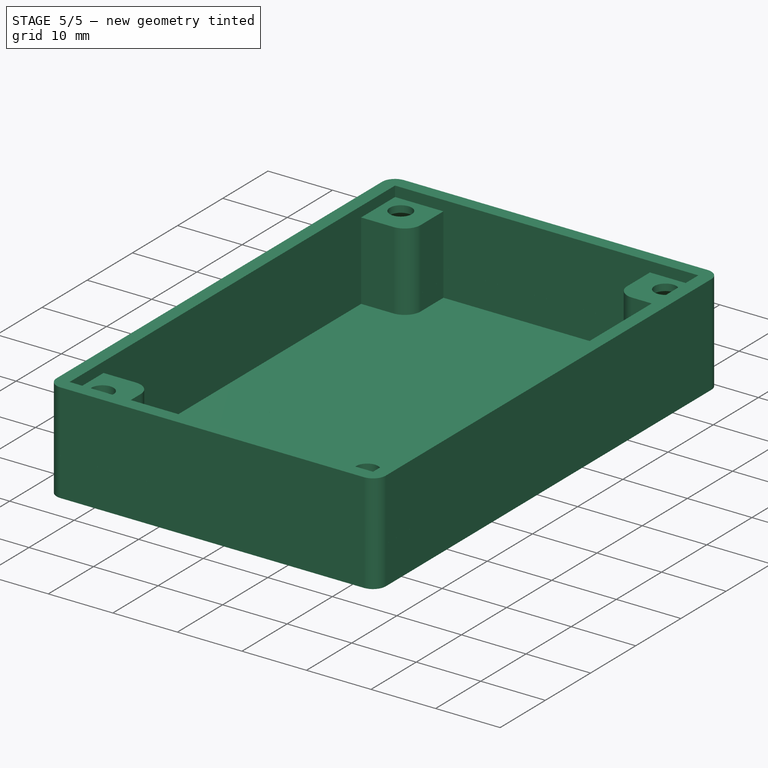
[diagram: stage 5 of 5 — iso view after this stage's code; geometry added in this stage tinted green]
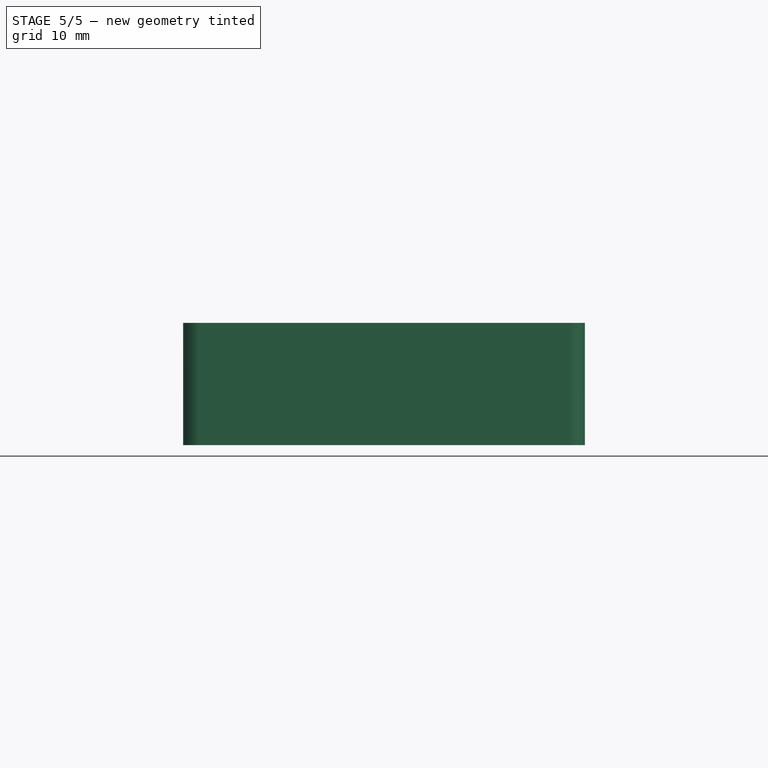
[diagram: stage 5 of 5 — front view after this stage's code; geometry added in this stage tinted green]
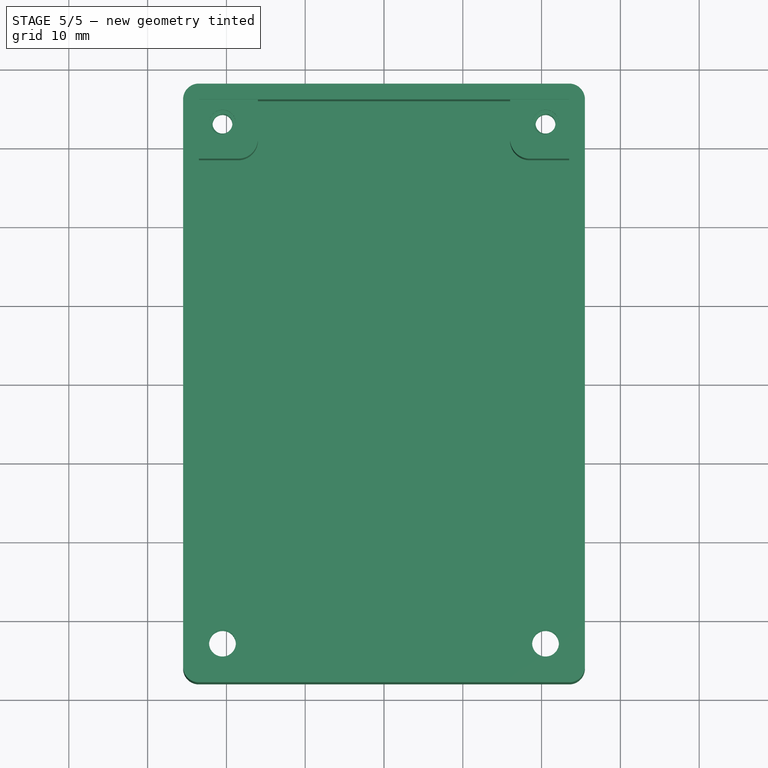
[diagram: stage 5 of 5 — top view after this stage's code; geometry added in this stage tinted green]
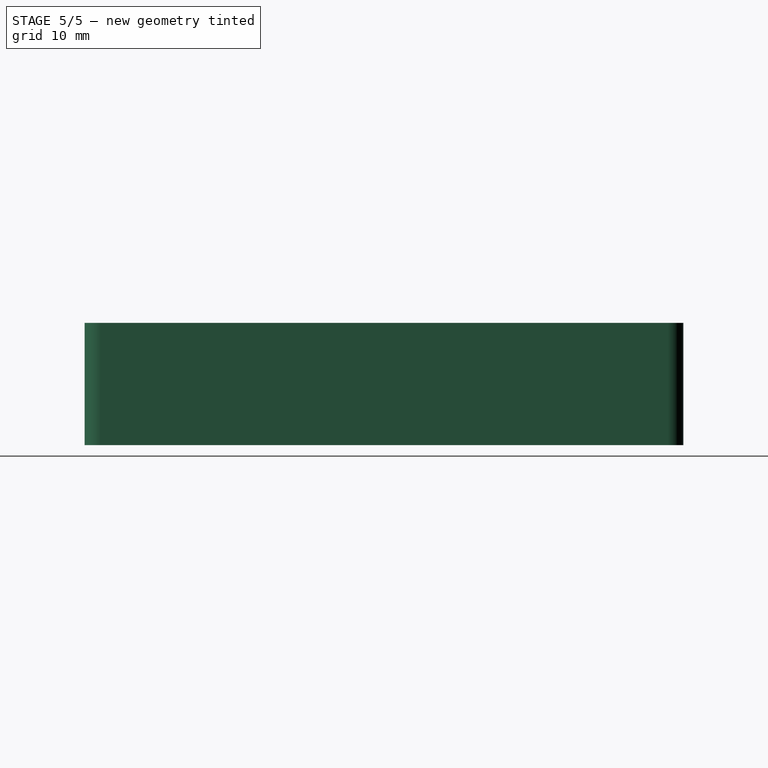
[diagram: stage 5 of 5 — right view after this stage's code; geometry added in this stage tinted green]
FEATURE [Sketcher::SketchObject] Sketch004
  ArcFitTolerance = 1e-06
  AttachmentSupport = -> [XY_Plane001]
  FullyConstrained = false
  MakeInternals = false
  MapMode = 5
  sketch-geometry (37):
    g0: LineSegment [constr] StartX=-20.5 StartY=-33 StartZ=0 EndX=20.5 EndY=-33 EndZ=0
    g1: LineSegment [constr] StartX=20.5 StartY=-33 StartZ=0 EndX=20.5 EndY=33 EndZ=0
    g2: LineSegment [constr] StartX=20.5 StartY=33 StartZ=0 EndX=-20.5 EndY=33 EndZ=0
    g3: LineSegment [constr] StartX=-20.5 StartY=33 StartZ=0 EndX=-20.5 EndY=-33 EndZ=0
    g4: GeomPoint [constr] X=0 Y=0 Z=0
    g5: LineSegment [constr] StartX=-23.6 StartY=29.9 StartZ=0 EndX=-17.4 EndY=29.9 EndZ=0
    g6: LineSegment [constr] StartX=-17.4 StartY=29.9 StartZ=0 EndX=-17.4 EndY=36.1 EndZ=0
    g7: LineSegment [constr] StartX=-17.4 StartY=36.1 StartZ=0 EndX=-23.6 EndY=36.1 EndZ=0
    g8: LineSegment [constr] StartX=-23.6 StartY=36.1 StartZ=0 EndX=-23.6 EndY=29.9 EndZ=0
    g9: GeomPoint [constr] X=-20.5 Y=33 Z=0
    g10: LineSegment [constr] StartX=17.4 StartY=29.9 StartZ=0 EndX=23.6 EndY=29.9 EndZ=0
    g11: LineSegment [constr] StartX=23.6 StartY=29.9 StartZ=0 EndX=23.6 EndY=36.1 EndZ=0
    g12: LineSegment [constr] StartX=23.6 StartY=36.1 StartZ=0 EndX=17.4 EndY=36.1 EndZ=0
    g13: LineSegment [constr] StartX=17.4 StartY=36.1 StartZ=0 EndX=17.4 EndY=29.9 EndZ=0
    g14: GeomPoint [constr] X=20.5 Y=33 Z=0
    g15: LineSegment [constr] StartX=-23.5 StartY=-38 StartZ=0 EndX=23.5 EndY=-38 EndZ=0
    g16: LineSegment [constr] StartX=25.5 StartY=-36 StartZ=0 EndX=25.5 EndY=36 EndZ=0
    g17: LineSegment [constr] StartX=23.5 StartY=38 StartZ=0 EndX=-23.5 EndY=38 EndZ=0
    g18: LineSegment [constr] StartX=-25.5 StartY=36 StartZ=0 EndX=-25.5 EndY=-36 EndZ=0
    g19: ArcOfCircle [constr] CenterX=-23.5 CenterY=-36 CenterZ=0 NormalX=0 NormalY=0 NormalZ=1 AngleXU=0 Radius=2 StartAngle=3.14159 EndAngle=4.71239
    g20: ArcOfCircle [constr] CenterX=23.5 CenterY=-36 CenterZ=0 NormalX=0 NormalY=0 NormalZ=1 AngleXU=0 Radius=2 StartAngle=4.71239 EndAngle=6.28319
    g21: ArcOfCircle [constr] CenterX=23.5 CenterY=36 CenterZ=0 NormalX=0 NormalY=0 NormalZ=1 AngleXU=0 Radius=2 StartAngle=0 EndAngle=1.5708
    g22: ArcOfCircle [constr] CenterX=-23.5 CenterY=36 CenterZ=0 NormalX=0 NormalY=0 NormalZ=1 AngleXU=0 Radius=2 StartAngle=1.5708 EndAngle=3.14159
    g23: GeomPoint [constr] X=25.5 Y=38 Z=0
    g24: GeomPoint [constr] X=0 Y=0 Z=0
    g25: LineSegment [constr] StartX=-23.6 StartY=29.9 StartZ=0 EndX=-25.5 EndY=29.9 EndZ=0
    g26: LineSegment [constr] StartX=23.6 StartY=29.9 StartZ=0 EndX=25.5 EndY=29.9 EndZ=0
    g27: LineSegment StartX=-17.4 StartY=29.9 StartZ=0 EndX=-25.5 EndY=29.9 EndZ=0
    g28: LineSegment StartX=-25.5 StartY=29.9 StartZ=0 EndX=-25.5 EndY=36 EndZ=0
    g29: ArcOfCircle CenterX=-23.5 CenterY=36 CenterZ=0 NormalX=0 NormalY=0 NormalZ=1 AngleXU=0 Radius=2 StartAngle=1.5708 EndAngle=3.14159
    g30: LineSegment StartX=-23.5 StartY=38 StartZ=0 EndX=23.5 EndY=38 EndZ=0
    g31: ArcOfCircle CenterX=23.5 CenterY=36 CenterZ=0 NormalX=0 NormalY=0 NormalZ=1 AngleXU=0 Radius=2.00002 StartAngle=8.03279e-06 EndAngle=1.5708
    g32: LineSegment StartX=25.5 StartY=36 StartZ=0 EndX=25.5 EndY=29.9 EndZ=0
    g33: LineSegment StartX=25.5 StartY=29.9 StartZ=0 EndX=17.4 EndY=29.9 EndZ=0
    g34: LineSegment StartX=17.4 StartY=29.9 StartZ=0 EndX=17.4 EndY=36.1 EndZ=0
    g35: LineSegment StartX=17.4 StartY=36.1 StartZ=0 EndX=-17.4 EndY=36.1 EndZ=0
    g36: LineSegment StartX=-17.4 StartY=36.1 StartZ=0 EndX=-17.4 EndY=29.9 EndZ=0
  constraints (83):
    c: Coincident(g0,g1)
    c: Coincident(g1,g2)
    c: Coincident(g2,g3)
    c: Coincident(g3,g0)
    c: Horizontal(g0)
    c: Horizontal(g2)
    c: Vertical(g1)
    c: Vertical(g3)
    c: Symmetric(g2,g0,g4)
    c: Distance(g1,g3) = 41
    c: Distance(g0,g2) = 66
    c: Coincident(g4,g-1)
    c: Coincident(g5,g6)
    c: Coincident(g6,g7)
    c: Coincident(g7,g8)
    c: Coincident(g8,g5)
    c: Horizontal(g5)
    c: Horizontal(g7)
    c: Vertical(g6)
    c: Vertical(g8)
    c: Symmetric(g7,g5,g9)
    c: Distance(g6,g8) = 6.2
    c: Distance(g5,g7) = 6.2
    c: Coincident(g9,g2)
    c: Coincident(g10,g11)
    c: Coincident(g11,g12)
    c: Coincident(g12,g13)
    c: Coincident(g13,g10)
    c: Horizontal(g10)
    c: Horizontal(g12)
    c: Vertical(g11)
    c: Vertical(g13)
    c: Symmetric(g12,g10,g14)
    c: Distance(g11,g13) = 6.2
    c: Distance(g10,g12) = 6.2
    c: Coincident(g14,g1)
    c: Tangent(g15,g19) = -1.5708
    c: Tangent(g15,g20) = -1.5708
    c: Tangent(g16,g20) = -1.5708
    c: Tangent(g16,g21) = -1.5708
    c: Tangent(g17,g21) = -1.5708
    c: Tangent(g17,g22) = -1.5708
    c: Tangent(g18,g22) = -1.5708
    c: Tangent(g18,g19) = -1.5708
    c: Horizontal(g15)
    c: Horizontal(g17)
    c: Vertical(g16)
    c: Vertical(g18)
    c: Equal(g19,g20)
    c: Equal(g20,g21)
    c: Equal(g21,g22)
    c: Symmetric(g17,g15,g24)
    c: PointOnObject(g23,g16)
    c: PointOnObject(g23,g17)
    c: Distance(g16,g18) = 51
    c: Distance(g15,g17) = 76
    c: Radius(g20) = 2
    c: Coincident(g24,g4)
    c: Coincident(g25,g5)
    c: PointOnObject(g25,g18)
    c: Horizontal(g25)
    c: Coincident(g26,g10)
    c: PointOnObject(g26,g16)
    c: Horizontal(g26)
    c: Coincident(g5,g27)
    c: Coincident(g27,g25)
    c: Coincident(g27,g28)
    c: Coincident(g28,g18)
    c: Tangent(g28,g29) = 1.5708
    c: Coincident(g29,g17)
    c: Tangent(g29,g30) = 1.5708
    c: Tangent(g30,g31) = 1.5708
    c: Coincident(g31,g16)
    c: Tangent(g31,g32) = 1.5708
    c: Coincident(g32,g33)
    c: Coincident(g33,g10)
    c: Horizontal(g33)
    c: Coincident(g33,g34)
    c: Coincident(g34,g12)
    c: Coincident(g34,g35)
    c: Coincident(g35,g6)
    c: Coincident(g35,g36)
    c: Coincident(g36,g27)
FEATURE [PartDesign::Pad] Pad003
  Direction = (0,0,1)
  Length = 10.8
  Length2 = 10
  Profile = -> Sketch004
  ReferenceAxis = -> Sketch004 [N_Axis]
  Suppressed = false
  Type = 0
FEATURE [Sketcher::SketchObject] Sketch005
  ArcFitTolerance = 1e-06
  AttachmentSupport = -> [Pad003]
  FullyConstrained = true
  MakeInternals = false
  MapMode = 5
  Placement = pos=(0,0,10.8) rot=(0,0,1;0rad)
  sketch-geometry (7):
    g0: LineSegment [constr] StartX=-20.5 StartY=-33 StartZ=0 EndX=20.5 EndY=-33 EndZ=0
    g1: LineSegment [constr] StartX=20.5 StartY=-33 StartZ=0 EndX=20.5 EndY=33 EndZ=0
    g2: LineSegment [constr] StartX=20.5 StartY=33 StartZ=0 EndX=-20.5 EndY=33 EndZ=0
    g3: LineSegment [constr] StartX=-20.5 StartY=33 StartZ=0 EndX=-20.5 EndY=-33 EndZ=0
    g4: GeomPoint [constr] X=0 Y=0 Z=0
    g5: Circle CenterX=-20.5 CenterY=33 CenterZ=0 NormalX=0 NormalY=0 NormalZ=1 AngleXU=0 Radius=1.25
    g6: Circle CenterX=20.5 CenterY=33 CenterZ=0 NormalX=0 NormalY=0 NormalZ=1 AngleXU=0 Radius=1.25
  constraints (16):
    c: Coincident(g0,g1)
    c: Coincident(g1,g2)
    c: Coincident(g2,g3)
    c: Coincident(g3,g0)
    c: Horizontal(g0)
    c: Horizontal(g2)
    c: Vertical(g1)
    c: Vertical(g3)
    c: Symmetric(g2,g0,g4)
    c: Distance(g1,g3) = 41
    c: Distance(g0,g2) = 66
    c: Coincident(g4,g-1)
    c: Diameter(g5) = 2.5
    c: Coincident(g5,g2)
    c: Diameter(g6) = 2.5
    c: Coincident(g6,g1)
FEATURE [PartDesign::Hole] Hole001
  BaseFeature = -> Pad003
  CustomThreadClearance = 0
  Depth = 25
  DepthType = 0
  Diameter = 2.52
  DrillForDepth = false
  DrillPoint = 1
  DrillPointAngle = 118
  HoleCutCountersinkAngle = 90
  HoleCutCustomValues = false
  HoleCutDepth = 0
  HoleCutDiameter = 6.1
  HoleCutType = 0
  ModelThread = true
  Profile = -> Sketch005
  Suppressed = false
  Tapered = false
  TaperedAngle = 90
  ThreadClass = 0
  ThreadDepth = 25
  ThreadDepthType = 0
  ThreadDirection = 0
  ThreadFit = 0
  ThreadSize = 9
  ThreadType = 1
  Threaded = true
  UseCustomThreadClearance = false
FEATURE [PartDesign::Fillet] Fillet001
  Base = -> Hole001 [Edge47,Edge1]
  BaseFeature = -> Hole001
  Radius = 2.5
  SupportTransform = false
  Suppressed = false
  UseAllEdges = false
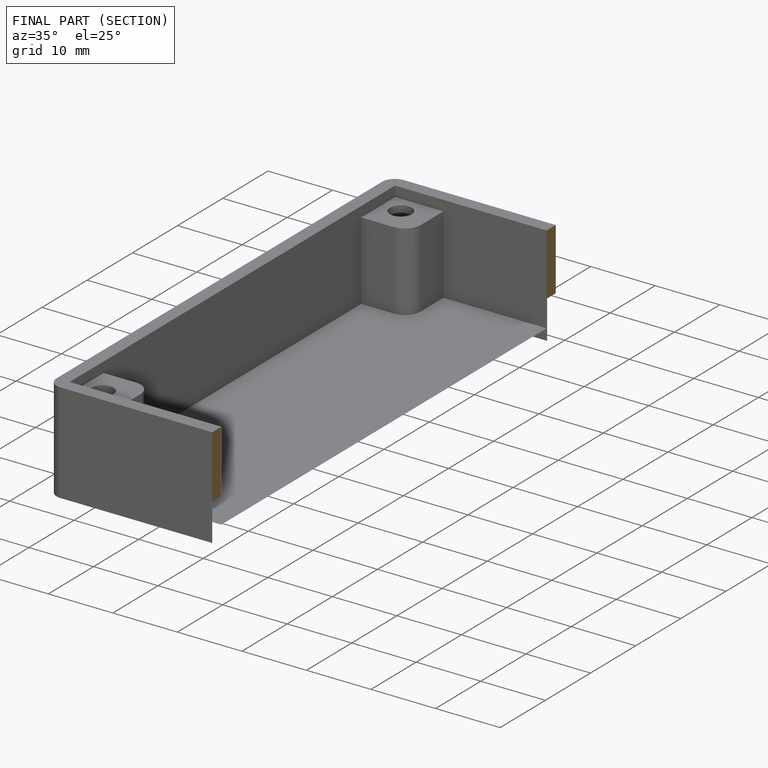
[diagram: finished part — half-section view (interior)]
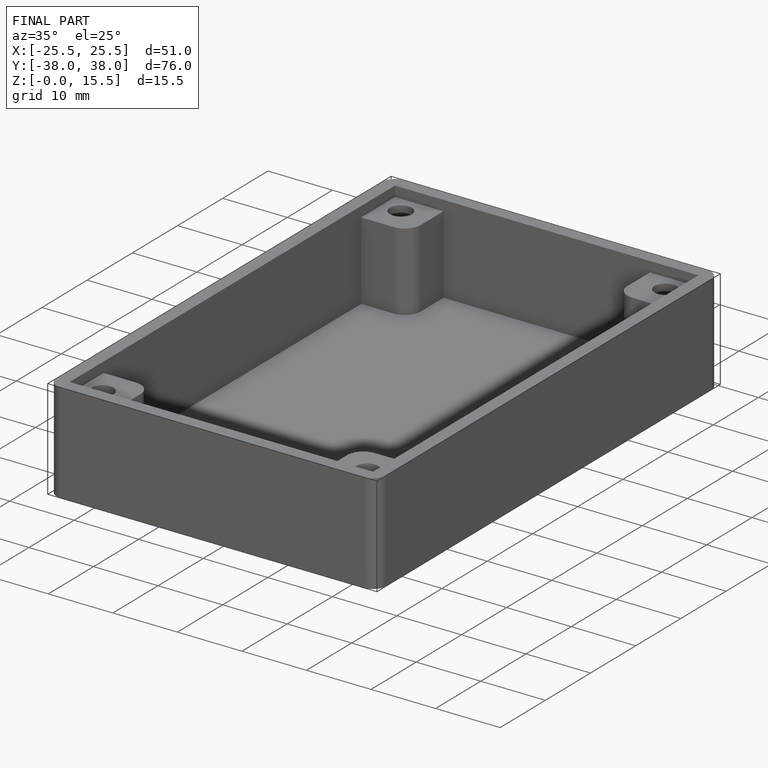
[diagram: finished part — iso view with bounding-box wireframe]
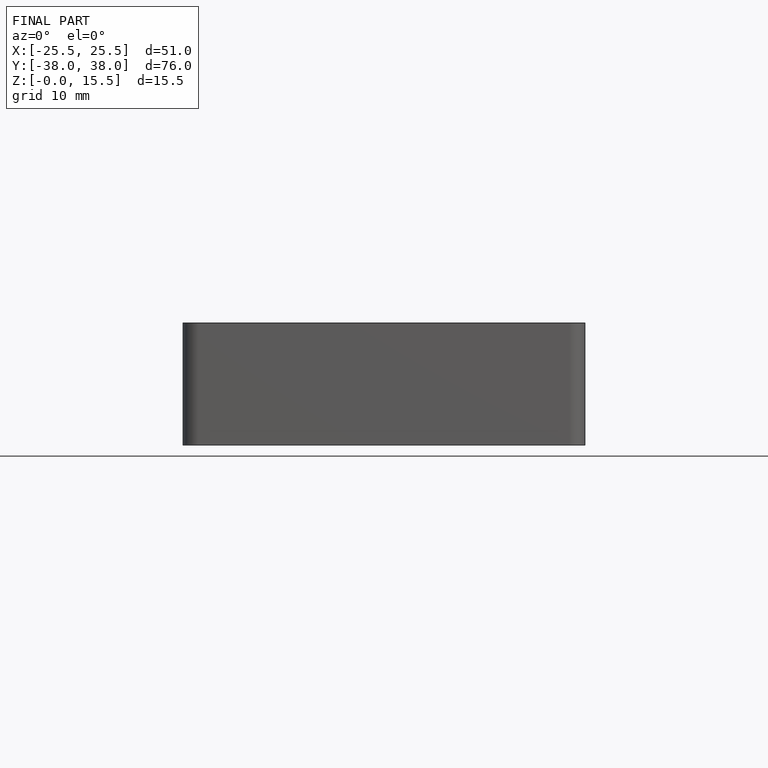
[diagram: finished part — front view with bounding-box wireframe]
